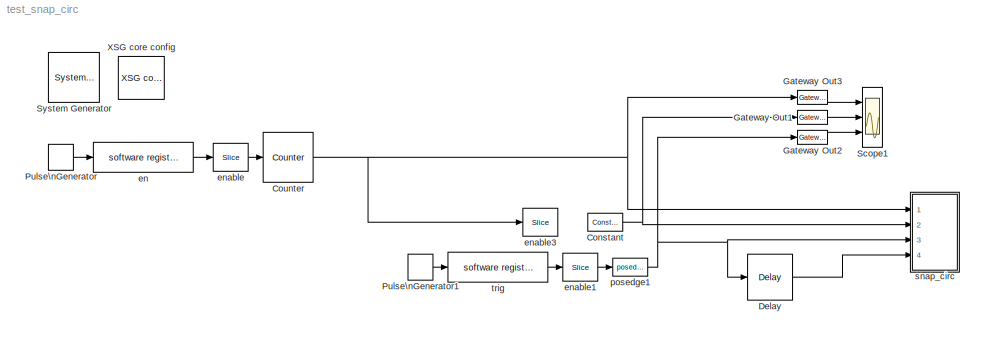
MODEL test_snap_circ
KIND model
BLOCK [Reference]  System Generator  REF=xbsIndex_r4/ System Generator
  AttributesFormatString = System\\nGenerator
  FunctionWithSeparateData = off
  Ports = []
  RTWMemSecDataConstants = Inherit from model
  RTWMemSecDataInternal = Inherit from model
  RTWMemSecDataParameters = Inherit from model
  RTWMemSecFuncExecute = Inherit from model
  RTWMemSecFuncInitTerm = Inherit from model
  ShowPortLabels = FromPortIcon
  SourceBlock = xbsIndex_r4/ System Generator
  SourceType = Xilinx System Generator Block
  SystemSampleTime = -1
  Tag = genX
  UserData = DataTag0
  UserDataPersistent = on
  block_type = sysgen
  block_version = 10.1.3
  clock_wrapper = Clock Enables
  core_generation = According to Block Masks
  dbl_ovrd = According to Block Masks
  dcm_input_clock_period = 100
  deprecated_control = off
  directory = ./cn_b_2x_128w_8a_r307a/sysgen
  eval_field = 0
  has_advanced_control = 0
  incr_netlist = off
  infoedit = System Generator
  package = ff1704
  part = xc2vp70
  run_coregen = off
  sg_icon_stat = 51,50,-1,-1,red,beige,0,07734,right
  sg_mask_display = fprintf('','COMMENT: begin icon graphics');\npatch([0 51 51 0 ],[0 0 50 50 ],[0.93 0.92 0.86]);\npatch([12 4 16 4 12 25 29 33 47 36 25 17 29 17 25 36 47 33 29 25 12 ],[5 13 25 37 45 45 41 45 45 34 45 37 25 13 5 16 5 5 9 5 5 ],[0.6 0.2 0.25]);\nplot([0 51 51 0 0 ],[0 0 50 50 0 ]);\nfprintf('','COMMENT: end icon graphics');\nfprintf('','COMMENT: begin icon text');\nfprintf('','COMMENT: end icon text...<+5ch>
  sggui_pos = -1,-1,-1,-1
  simulink_period = 1
  speed = -7
  synthesis_tool = XST
  sysclk_period = 4.878
  testbench = off
  trim_vbits = Everywhere in SubSystem
  xilinxfamily = Virtex2P
BLOCK [Reference] Constant  REF=xbsIndex_r4/Constant
  Ports = [0, 1]
  SourceBlock = xbsIndex_r4/Constant
  SourceType = Xilinx Constant Block Block
  arith_type = Boolean
  bin_pt = 0
  block_type = constant
  block_version = 10.1.3
  carry = CIN
  const = 1
  dbl_ovrd = off
  dsp48_infoedit = The use of this block for DSP48 instructions is deprecated.  Please use the Opmode block.
  equ = P=C
  explicit_period = on
  has_advanced_control = 0
  inp1 = P
  inp2 = PCIN>>17
  n_bits = 1
  opr = +
  opselect = C
  period = 1
  sg_icon_stat = 35,18,0,1,white,blue,0,1c72b5be,right,
  sg_mask_display = fprintf('','COMMENT: begin icon graphics');\npatch([0 1 1 0 ],[0 0 1 1 ],[0.77 0.82 0.91]);\npatch([0.371429 0.285714 0.4 0.285714 0.371429 0.514286 0.542857 0.571429 0.714286 0.6 0.485714 0.4 0.514286 0.4 0.485714 0.6 0.714286 0.571429 0.542857 0.514286 0.371429 ],[0.111111 0.277778 0.5 0.722222 0.888889 0.888889 0.833333 0.888889 0.888889 0.666667 0.888889 0.722222 0.5 0.277778 0.111111 0.333333...<+269ch>
  sggui_pos = 20,20,414,346
BLOCK [Reference] Counter  REF=xbsIndex_r4/Counter
  Ports = [1, 1]
  SourceBlock = xbsIndex_r4/Counter
  SourceType = Xilinx Counter Block
  arith_type = Unsigned
  bin_pt = 0
  block_type = counter
  block_version = 10.1.3
  cnt_by_val = 1
  cnt_to = Inf
  cnt_type = Free Running
  dbl_ovrd = off
  en = on
  explicit_period = on
  has_advanced_control = 0
  implementation = Fabric
  infoedit = Hardware notes: Free running counters are the least expensive in hardware.  A count limited counter is implemented by combining a counter with a comparator.
  load_pin = off
  n_bits = 32
  operation = Up
  period = 1
  rst = off
  sg_icon_stat = 50,50,1,1,white,blue,0,ed54cb7a,right,
  sg_mask_display = fprintf('','COMMENT: begin icon graphics');\npatch([0 1 1 0 ],[0 0 1 1 ],[0.77 0.82 0.91]);\npatch([0.22 0.06 0.3 0.06 0.22 0.48 0.56 0.64 0.92 0.7 0.48 0.32 0.56 0.32 0.48 0.7 0.92 0.64 0.56 0.48 0.22 ],[0.1 0.26 0.5 0.74 0.9 0.9 0.82 0.9 0.9 0.68 0.9 0.74 0.5 0.26 0.1 0.32 0.1 0.1 0.18 0.1 0.1 ],[0.98 0.96 0.92]);\nplot([0 1 1 0 0 ],[0 0 1 1 0 ]);\nfprintf('','COMMENT: end icon graphics');\nfpri...<+166ch>
  sggui_pos = 20,20,348,619
  start_count = 0
  use_behavioral_HDL = off
  use_rpm = on
  xl_area = [0, 0, 0, 0, 0, 0, 0]
  xl_use_area = off
BLOCK [Reference] Delay  REF=xbsIndex_r4/Delay
  Ports = [1, 1]
  SourceBlock = xbsIndex_r4/Delay
  SourceType = Xilinx Delay Block
  block_type = delay
  block_version = 10.1.3
  dbl_ovrd = off
  en = off
  has_advanced_control = 0
  infoedit = Hardware notes: A delay line is a chain, each link of which is an SRL16 followed by a flip-flop.
  latency = 5200
  reg_retiming = off
  sg_icon_stat = 45,46,1,1,white,blue,0,2eaf0c6a,right,
  sg_mask_display = fprintf('','COMMENT: begin icon graphics');\npatch([0 1 1 0 ],[0 0 1 1 ],[0.77 0.82 0.91]);\npatch([0.222222 0.0666667 0.311111 0.0666667 0.222222 0.488889 0.555556 0.622222 0.911111 0.688889 0.466667 0.311111 0.555556 0.311111 0.466667 0.688889 0.911111 0.622222 0.555556 0.488889 0.222222 ],[0.108696 0.26087 0.5 0.73913 0.891304 0.891304 0.826087 0.891304 0.891304 0.673913 0.891304 0.73913 0.5 0....<+298ch>
  sggui_pos = -1,-1,-1,-1
  xl_area = [0, 0, 0, 0, 0, 0, 0]
  xl_use_area = off
BLOCK [Reference] Gateway Out1  REF=xbsIndex_r4/Gateway Out
  LOCs = {}
  Ports = [1, 1]
  SourceBlock = xbsIndex_r4/Gateway Out
  SourceType = Xilinx Gateway Out Block
  block_type = gatewayout
  block_version = 10.1.3
  has_advanced_control = 0
  hdl_port = off
  infoedit = Gateway out block.  Converts Xilinx fixed point inputs into ouputs of type Simulink integer, double, or fixed point.<P><P>Hardware notes:  In hardware these blocks become top level output ports or are discarded, depending on how they are configured.  <repeated x19 — deduplicated; at blocks: Gateway Out1, Gateway Out2, Gateway Out3, Gateway Out10, Gateway Out11, Gateway Out12, Gateway Out13, Gateway Out14, Gateway Out15, Gateway Out16, Gateway Out4, Gateway Out5, Gateway Out6, Gateway Out7, Gateway Out8, Gateway Out9>
  locs_specified = off
  sg_icon_stat = 30,14,1,1,white,grey,0,632ec840,right,
  sg_mask_display = fprintf('','COMMENT: begin icon graphics');\npatch([0 1 1 0 ],[0 0 1 1 ],[0.88 0.88 0.88]);\npatch([0.366667 0.3 0.4 0.3 0.366667 0.5 0.533333 0.566667 0.7 0.6 0.5 0.433333 0.533333 0.433333 0.5 0.6 0.7 0.566667 0.533333 0.5 0.366667 ],[0.142857 0.285714 0.5 0.714286 0.857143 0.857143 0.785714 0.857143 0.857143 0.642857 0.857143 0.714286 0.5 0.285714 0.142857 0.357143 0.142857 0.142857 0.214286 0....<+317ch>  <repeated x19 — deduplicated; at blocks: Gateway Out1, Gateway Out2, Gateway Out3, Gateway Out10, Gateway Out11, Gateway Out12, Gateway Out13, Gateway Out14, Gateway Out15, Gateway Out16, Gateway Out4, Gateway Out5, Gateway Out6, Gateway Out7, Gateway Out8, Gateway Out9>
  sggui_pos = -1,-1,-1,-1
  timing_constraint = None
  xl_area = [0, 0, 0, 0, 0, 0, 0]
  xl_use_area = off
BLOCK [Reference] Gateway Out2  REF=xbsIndex_r4/Gateway Out
  LOCs = {}
  Ports = [1, 1]
  SourceBlock = xbsIndex_r4/Gateway Out
  SourceType = Xilinx Gateway Out Block
  block_type = gatewayout
  block_version = 10.1.3
  has_advanced_control = 0
  hdl_port = off
  locs_specified = off
  sg_icon_stat = 30,14,1,1,white,grey,0,632ec840,right,
  sggui_pos = -1,-1,-1,-1
  timing_constraint = None
  xl_area = [0, 0, 0, 0, 0, 0, 0]
  xl_use_area = off
BLOCK [Reference] Gateway Out3  REF=xbsIndex_r4/Gateway Out
  LOCs = {}
  Ports = [1, 1]
  SourceBlock = xbsIndex_r4/Gateway Out
  SourceType = Xilinx Gateway Out Block
  block_type = gatewayout
  block_version = 10.1.3
  has_advanced_control = 0
  hdl_port = off
  locs_specified = off
  sg_icon_stat = 30,14,1,1,white,grey,0,632ec840,right,
  sggui_pos = -1,-1,-1,-1
  timing_constraint = None
  xl_area = [0, 0, 0, 0, 0, 0, 0]
  xl_use_area = off
BLOCK [DiscretePulseGenerator] Pulse\nGenerator
  Period = 1
  Ports = [0, 1]
BLOCK [DiscretePulseGenerator] Pulse\nGenerator1
  Period = 2000
  PhaseDelay = 5
  Ports = [0, 1]
  PulseWidth = 2
BLOCK [Scope] Scope1
  DataFormat = StructureWithTime
  Floating = off
  LimitDataPoints = off
  NumInputPorts = 3
  Ports = [3]
  SampleTime = 0
  YMax = 300648000~110~1
  YMin = 272014000~0~0
  ZoomMode = yonly
BLOCK [Reference] XSG core config  REF=xps_library/XSG core config  (lib defined in mdl_00b5cec29cd0, mdl_02ab6ecaa3d1, +5 more)
  BEE2_ctrl_clk_src = sys_clk
  BEE2_usr_clk_src = sys_clk
  CORR_clk_src = sys_clk
  FunctionWithSeparateData = off
  Ports = []
  ROACH_clk_src = sys_clk
  RTWMemSecDataConstants = Inherit from model
  RTWMemSecDataInternal = Inherit from model
  RTWMemSecDataParameters = Inherit from model
  RTWMemSecFuncExecute = Inherit from model
  RTWMemSecFuncInitTerm = Inherit from model
  ShowPortLabels = FromPortIcon
  SourceBlock = xps_library/XSG core config
  SourceType = xsg core config
  SystemSampleTime = -1
  Tag = xps:xsg
  clk_rate = 100
  clk_src = sys_clk
  gpio_clk_bit_index = 0
  gpio_clk_io_group = iBOB:sma
  hw_sys = ROACH:sx95t
  iBOB_clk_src = sys_clk
  ibob_linux = off
  mpc_type = powerpc440_ext
  sample_period = 1
  synthesis_tool = XST
BLOCK [Reference] en  REF=xps_library/software register  (lib defined in mdl_00b5cec29cd0, mdl_02ab6ecaa3d1, +5 more)
  FunctionWithSeparateData = off
  Ports = [1, 1]
  RTWMemSecDataConstants = Inherit from model
  RTWMemSecDataInternal = Inherit from model
  RTWMemSecDataParameters = Inherit from model
  RTWMemSecFuncExecute = Inherit from model
  RTWMemSecFuncInitTerm = Inherit from model
  ShowPortLabels = FromPortIcon
  SourceBlock = xps_library/software register
  SystemSampleTime = -1
  Tag = xps:sw_reg
  arith_type = Unsigned
  bin_pt = 0
  bitwidth = 32
  gw_name = test_snap_circ_en_user_data_out
  io_dir = From Processor
  sample_period = 1
BLOCK [Reference] enable  REF=xbsIndex_r4/Slice
  Ports = [1, 1]
  SourceBlock = xbsIndex_r4/Slice
  SourceType = Xilinx Bit Slice Extractor Block
  base0 = LSB of Input
  base1 = LSB of Input
  bit0 = 0
  bit1 = 0
  block_type = slice
  block_version = 10.1.3
  boolean_output = on
  dbl_ovrd = off
  has_advanced_control = 0
  infoedit = Extracts a given range of bits from each input sample and presents it at the output.  The output type is ordinarily unsigned with binary point at zero, but can be Boolean when the slice is one bit wide.<P><P>Hardware notes: In hardware this block costs nothing.  <repeated x7 — deduplicated; at blocks: enable, enable1, enable3, circ_cap, trig1, valid>
  mode = Lower Bit Location + Width
  nbits = 1
  sg_icon_stat = 35,28,1,1,white,blue,0,1fd851a7,right,
  sg_mask_display = fprintf('','COMMENT: begin icon graphics');\npatch([0 1 1 0 ],[0 0 1 1 ],[0.77 0.82 0.91]);\npatch([0.285714 0.142857 0.342857 0.142857 0.285714 0.485714 0.542857 0.6 0.828571 0.657143 0.485714 0.371429 0.6 0.371429 0.485714 0.657143 0.828571 0.6 0.542857 0.485714 0.285714 ],[0.107143 0.285714 0.535714 0.785714 0.964286 0.964286 0.892857 0.964286 0.964286 0.75 0.964286 0.821429 0.535714 0.25 0.107...<+285ch>  <repeated x7 — deduplicated; at blocks: enable, enable1, enable3, circ_cap, trig1, valid>
  sggui_pos = -1,-1,-1,-1
BLOCK [Reference] enable1  REF=xbsIndex_r4/Slice
  Ports = [1, 1]
  SourceBlock = xbsIndex_r4/Slice
  SourceType = Xilinx Bit Slice Extractor Block
  base0 = LSB of Input
  base1 = LSB of Input
  bit0 = 0
  bit1 = 0
  block_type = slice
  block_version = 10.1.3
  boolean_output = on
  dbl_ovrd = off
  has_advanced_control = 0
  mode = Lower Bit Location + Width
  nbits = 1
  sg_icon_stat = 35,28,1,1,white,blue,0,1fd851a7,right,
  sggui_pos = -1,-1,-1,-1
BLOCK [Reference] enable3  REF=xbsIndex_r4/Slice
  Ports = [1, 1]
  SourceBlock = xbsIndex_r4/Slice
  SourceType = Xilinx Bit Slice Extractor Block
  base0 = LSB of Input
  base1 = LSB of Input
  bit0 = 0
  bit1 = 0
  block_type = slice
  block_version = 10.1.3
  boolean_output = on
  dbl_ovrd = off
  has_advanced_control = 0
  mode = Lower Bit Location + Width
  nbits = 1
  sg_icon_stat = 35,28,1,1,white,blue,0,1fd851a7,right,
  sggui_pos = 20,20,460,380
BLOCK [Reference] posedge1  REF=casper_library/Misc/posedge  (lib defined in mdl_138b2fc3435f, mdl_4ed325b712b3, +2 more)
  FunctionWithSeparateData = off
  Ports = [1, 1]
  RTWMemSecDataConstants = Inherit from model
  RTWMemSecDataInternal = Inherit from model
  RTWMemSecDataParameters = Inherit from model
  RTWMemSecFuncExecute = Inherit from model
  RTWMemSecFuncInitTerm = Inherit from model
  ShowPortLabels = FromPortIcon
  SourceBlock = casper_library/Misc/posedge
  SourceType = posedge
  SystemSampleTime = -1
  Tag = Rising Edge Detector
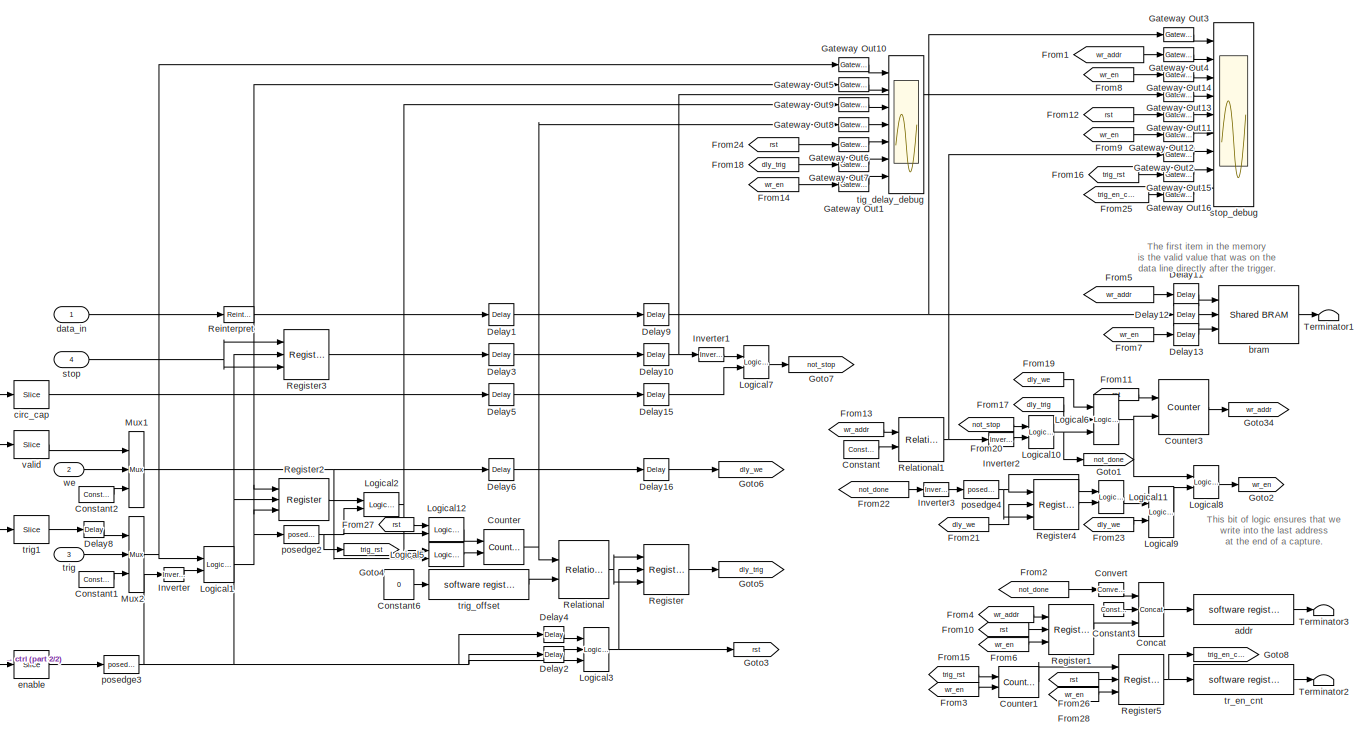
[diagram: snap_circ - part 1/2, most of the canvas]
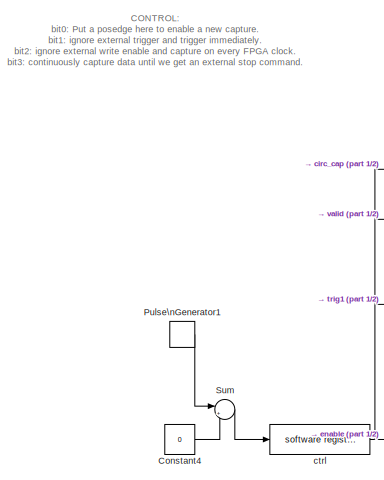
[diagram: snap_circ - part 2/2, middle left region]
BLOCK [SubSystem] snap_circ
  FunctionWithSeparateData = off
  MaskDescription = Backwards compatible with the normal snap block, but with the following upgrades:\n 1) Ability to offset the trigger. Optionally delay the fabric trigger by a user-specified number of valids.\n 2) 'Addr' register's MSb now indicates 'busy capturing'.\n 3) Ability to capture continuously until a stop pulse is received. Data is captured into BRAM continuously, with old data being overwritten until a...<+218ch>
  MaskEnableString = on
  MaskHideContents = off
  MaskIconFrame = on
  MaskIconOpaque = on
  MaskIconRotate = none
  MaskIconUnits = autoscale
  MaskPromptString = Number of Samples (2^?)
  MaskStyleString = edit
  MaskToolTipString = on
  MaskTunableValueString = on
  MaskType = snap_circ
  MaskValueString = 10
  MaskVariables = nsamples=@1;
  MaskVisibilityString = on
  MinAlgLoopOccurrences = off
  Opaque = off
  Ports = [4]
  PropExecContextOutsideSubsystem = off
  RTWSystemCode = Auto
  RequestExecContextInheritance = off
BLOCK [Reference] snap_circ/Concat  REF=xbsIndex_r4/Concat
  Ports = [3, 1]
  SourceBlock = xbsIndex_r4/Concat
  SourceType = Xilinx Bus Concatenator Block
  block_type = concat
  block_version = 10.1.3
  dbl_ovrd = off
  has_advanced_control = 0
  infoedit = Concatenates two or more inputs.  Output will be cast to an unsigned value with the binary point at zero.
  num_inputs = 3
  sg_icon_stat = 25,54,3,1,white,blue,0,cc9eafd1,right,
  sg_mask_display = fprintf('','COMMENT: begin icon graphics');\npatch([0 1 1 0 ],[0 0 1 1 ],[0.77 0.82 0.91]);\npatch([0.24 0.08 0.32 0.08 0.24 0.52 0.6 0.68 0.96 0.72 0.52 0.36 0.56 0.36 0.52 0.72 0.96 0.68 0.6 0.52 0.24 ],[0.314815 0.388889 0.5 0.611111 0.685185 0.685185 0.648148 0.685185 0.685185 0.574074 0.666667 0.592593 0.5 0.407407 0.333333 0.425926 0.314815 0.314815 0.351852 0.314815 0.314815 ],[0.98 0.96 0....<+252ch>
  sggui_pos = 20,20,336,162
BLOCK [Reference] snap_circ/Constant  REF=xbsIndex_r4/Constant
  Ports = [0, 1]
  SourceBlock = xbsIndex_r4/Constant
  SourceType = Xilinx Constant Block Block
  arith_type = Unsigned
  bin_pt = 0
  block_type = constant
  block_version = 10.1.3
  carry = CIN
  const = (2^nsamples)-1
  dbl_ovrd = off
  dsp48_infoedit = The use of this block for DSP48 instructions is deprecated.  Please use the Opmode block.
  equ = P=C
  explicit_period = on
  has_advanced_control = 0
  inp1 = P
  inp2 = PCIN>>17
  n_bits = nsamples
  opr = +
  opselect = C
  period = 1
  sg_icon_stat = 35,18,0,1,white,blue,0,3ed70023,right,
  sg_mask_display = fprintf('','COMMENT: begin icon graphics');\npatch([0 1 1 0 ],[0 0 1 1 ],[0.77 0.82 0.91]);\npatch([0.371429 0.285714 0.4 0.285714 0.371429 0.514286 0.542857 0.571429 0.714286 0.6 0.485714 0.4 0.514286 0.4 0.485714 0.6 0.714286 0.571429 0.542857 0.514286 0.371429 ],[0.111111 0.277778 0.5 0.722222 0.888889 0.888889 0.833333 0.888889 0.888889 0.666667 0.888889 0.722222 0.5 0.277778 0.111111 0.333333...<+272ch>
  sggui_pos = 20,20,414,346
BLOCK [Reference] snap_circ/Constant1  REF=xbsIndex_r4/Constant
  Ports = [0, 1]
  SourceBlock = xbsIndex_r4/Constant
  SourceType = Xilinx Constant Block Block
  arith_type = Boolean
  bin_pt = 0
  block_type = constant
  block_version = 10.1.3
  carry = CIN
  const = 1
  dbl_ovrd = off
  dsp48_infoedit = The use of this block for DSP48 instructions is deprecated.  Please use the Opmode block.
  equ = P=C
  explicit_period = on
  has_advanced_control = 0
  inp1 = P
  inp2 = PCIN>>17
  n_bits = 1
  opr = +
  opselect = C
  period = 1
  sg_icon_stat = 35,16,0,1,white,blue,0,1c72b5be,right,
  sg_mask_display = fprintf('','COMMENT: begin icon graphics');\npatch([0 1 1 0 ],[0 0 1 1 ],[0.77 0.82 0.91]);\npatch([0.4 0.314286 0.428571 0.314286 0.4 0.514286 0.542857 0.571429 0.714286 0.6 0.514286 0.457143 0.571429 0.457143 0.514286 0.6 0.714286 0.571429 0.542857 0.514286 0.4 ],[0.125 0.3125 0.5625 0.8125 1 1 0.9375 1 1 0.75 0.9375 0.8125 0.5625 0.3125 0.1875 0.375 0.125 0.125 0.1875 0.125 0.125 ],[0.98 0.96 0...<+209ch>
  sggui_pos = -1,-1,-1,-1
BLOCK [Reference] snap_circ/Constant2  REF=xbsIndex_r4/Constant
  Ports = [0, 1]
  SourceBlock = xbsIndex_r4/Constant
  SourceType = Xilinx Constant Block Block
  arith_type = Boolean
  bin_pt = 0
  block_type = constant
  block_version = 10.1.3
  carry = CIN
  const = 1
  dbl_ovrd = off
  dsp48_infoedit = The use of this block for DSP48 instructions is deprecated.  Please use the Opmode block.
  equ = P=C
  explicit_period = on
  has_advanced_control = 0
  inp1 = P
  inp2 = PCIN>>17
  n_bits = 1
  opr = +
  opselect = C
  period = 1
  sg_icon_stat = 35,16,0,1,white,blue,0,1c72b5be,right,
  sg_mask_display = fprintf('','COMMENT: begin icon graphics');\npatch([0 1 1 0 ],[0 0 1 1 ],[0.77 0.82 0.91]);\npatch([0.4 0.314286 0.428571 0.314286 0.4 0.514286 0.542857 0.571429 0.714286 0.6 0.514286 0.457143 0.571429 0.457143 0.514286 0.6 0.714286 0.571429 0.542857 0.514286 0.4 ],[0.125 0.3125 0.5625 0.8125 1 1 0.9375 1 1 0.75 0.9375 0.8125 0.5625 0.3125 0.1875 0.375 0.125 0.125 0.1875 0.125 0.125 ],[0.98 0.96 0...<+209ch>
  sggui_pos = -1,-1,-1,-1
BLOCK [Reference] snap_circ/Constant3  REF=xbsIndex_r4/Constant
  Ports = [0, 1]
  SourceBlock = xbsIndex_r4/Constant
  SourceType = Xilinx Constant Block Block
  arith_type = Unsigned
  bin_pt = 0
  block_type = constant
  block_version = 10.1.3
  carry = CIN
  const = 0
  dbl_ovrd = off
  dsp48_infoedit = The use of this block for DSP48 instructions is deprecated.  Please use the Opmode block.
  equ = P=C
  explicit_period = on
  has_advanced_control = 0
  inp1 = P
  inp2 = PCIN>>17
  n_bits = 32-nsamples-1
  opr = +
  opselect = C
  period = 1
  sg_icon_stat = 20,14,0,1,white,blue,0,bf4ddd8b,right,
  sg_mask_display = fprintf('','COMMENT: begin icon graphics');\npatch([0 1 1 0 ],[0 0 1 1 ],[0.77 0.82 0.91]);\npatch([0.3 0.2 0.35 0.2 0.3 0.5 0.55 0.6 0.8 0.65 0.5 0.4 0.55 0.4 0.5 0.65 0.8 0.6 0.55 0.5 0.3 ],[0.142857 0.285714 0.5 0.714286 0.857143 0.857143 0.785714 0.857143 0.857143 0.642857 0.857143 0.714286 0.5 0.285714 0.142857 0.357143 0.142857 0.142857 0.214286 0.142857 0.142857 ],[0.98 0.96 0.92]);\nplot([...<+195ch>
  sggui_pos = 20,20,414,346
BLOCK [Constant] snap_circ/Constant4
  OutDataType = sfix(16)
  OutScaling = 2^0
  Value = 0
BLOCK [Constant] snap_circ/Constant6
  OutDataType = sfix(16)
  OutScaling = 2^0
  Value = 0
BLOCK [Reference] snap_circ/Convert  REF=xbsIndex_r4/Convert
  Ports = [1, 1]
  SourceBlock = xbsIndex_r4/Convert
  SourceType = Xilinx Type Converter Block
  arith_type = Unsigned
  bin_pt = 0
  block_type = convert
  block_version = 10.1.3
  dbl_ovrd = off
  has_advanced_control = 0
  infoedit = Hardware notes: rounding and saturating require hardware resources; truncating and wrapping do not.
  latency = 0
  n_bits = 1
  overflow = Wrap
  pipeline = off
  quantization = Truncate
  sg_icon_stat = 25,14,1,1,white,blue,0,edca21da,right,
  sg_mask_display = fprintf('','COMMENT: begin icon graphics');\npatch([0 1 1 0 ],[0 0 1 1 ],[0.77 0.82 0.91]);\npatch([0.32 0.24 0.36 0.24 0.32 0.48 0.52 0.56 0.72 0.6 0.48 0.4 0.52 0.4 0.48 0.6 0.72 0.56 0.52 0.48 0.32 ],[0.142857 0.285714 0.5 0.714286 0.857143 0.857143 0.785714 0.857143 0.857143 0.642857 0.857143 0.714286 0.5 0.285714 0.142857 0.357143 0.142857 0.142857 0.214286 0.142857 0.142857 ],[0.98 0.96 0.92...<+209ch>
  sggui_pos = 20,20,470,336
  xl_area = [0,0,0,0,0,0,0]
  xl_use_area = off
BLOCK [Reference] snap_circ/Counter  REF=xbsIndex_r4/Counter
  Ports = [2, 1]
  SourceBlock = xbsIndex_r4/Counter
  SourceType = Xilinx Counter Block
  arith_type = Unsigned
  bin_pt = 0
  block_type = counter
  block_version = 10.1.3
  cnt_by_val = 1
  cnt_to = Inf
  cnt_type = Free Running
  dbl_ovrd = off
  en = on
  explicit_period = on
  has_advanced_control = 0
  implementation = Fabric
  infoedit = Hardware notes: Free running counters are the least expensive in hardware.  A count limited counter is implemented by combining a counter with a comparator.
  load_pin = off
  n_bits = 32
  operation = Up
  period = 1
  rst = on
  sg_icon_stat = 40,35,2,1,white,blue,0,d605779c,right,
  sg_mask_display = fprintf('','COMMENT: begin icon graphics');\npatch([0 1 1 0 ],[0 0 1 1 ],[0.77 0.82 0.91]);\npatch([0.275 0.125 0.325 0.125 0.275 0.5 0.575 0.65 0.9 0.7 0.525 0.4 0.6 0.4 0.525 0.7 0.9 0.65 0.575 0.5 0.275 ],[0.114286 0.285714 0.514286 0.742857 0.914286 0.914286 0.828571 0.914286 0.914286 0.685714 0.885714 0.742857 0.514286 0.285714 0.142857 0.342857 0.114286 0.114286 0.2 0.114286 0.114286 ],[0.98...<+307ch>
  sggui_pos = 20,20,348,619
  start_count = 0
  use_behavioral_HDL = off
  use_rpm = on
  xl_area = [0, 0, 0, 0, 0, 0, 0]
  xl_use_area = off
BLOCK [Reference] snap_circ/Counter1  REF=xbsIndex_r4/Counter
  Ports = [2, 1]
  SourceBlock = xbsIndex_r4/Counter
  SourceType = Xilinx Counter Block
  arith_type = Unsigned
  bin_pt = 0
  block_type = counter
  block_version = 10.1.3
  cnt_by_val = 1
  cnt_to = Inf
  cnt_type = Free Running
  dbl_ovrd = off
  en = on
  explicit_period = on
  has_advanced_control = 0
  implementation = Fabric
  infoedit = Hardware notes: Free running counters are the least expensive in hardware.  A count limited counter is implemented by combining a counter with a comparator.
  load_pin = off
  n_bits = 32
  operation = Up
  period = 1
  rst = on
  sg_icon_stat = 40,31,2,1,white,blue,0,d605779c,right,
  sg_mask_display = fprintf('','COMMENT: begin icon graphics');\npatch([0 1 1 0 ],[0 0 1 1 ],[0.77 0.82 0.91]);\npatch([0.3 0.175 0.35 0.175 0.3 0.5 0.55 0.6 0.825 0.65 0.475 0.35 0.525 0.35 0.475 0.65 0.825 0.6 0.55 0.5 0.3 ],[0.0967742 0.258065 0.483871 0.709677 0.870968 0.870968 0.806452 0.870968 0.870968 0.645161 0.870968 0.709677 0.483871 0.258065 0.0967742 0.322581 0.0967742 0.0967742 0.16129 0.0967742 0.096774...<+316ch>
  sggui_pos = 20,20,348,619
  start_count = 0
  use_behavioral_HDL = off
  use_rpm = on
  xl_area = [0, 0, 0, 0, 0, 0, 0]
  xl_use_area = off
BLOCK [Reference] snap_circ/Counter3  REF=xbsIndex_r4/Counter
  Ports = [2, 1]
  SourceBlock = xbsIndex_r4/Counter
  SourceType = Xilinx Counter Block
  arith_type = Unsigned
  bin_pt = 0
  block_type = counter
  block_version = 10.1.3
  cnt_by_val = 1
  cnt_to = 1
  cnt_type = Free Running
  dbl_ovrd = off
  en = on
  explicit_period = on
  has_advanced_control = 0
  implementation = Fabric
  infoedit = Hardware notes: Free running counters are the least expensive in hardware.  A count limited counter is implemented by combining a counter with a comparator.
  load_pin = off
  n_bits = nsamples
  operation = Up
  period = 1
  rst = on
  sg_icon_stat = 50,55,2,1,white,blue,0,d605779c,right,
  sg_mask_display = fprintf('','COMMENT: begin icon graphics');\npatch([0 1 1 0 ],[0 0 1 1 ],[0.77 0.82 0.91]);\npatch([0.22 0.06 0.3 0.06 0.22 0.48 0.56 0.64 0.92 0.7 0.48 0.32 0.56 0.32 0.48 0.7 0.92 0.64 0.56 0.48 0.22 ],[0.145455 0.290909 0.509091 0.727273 0.872727 0.872727 0.8 0.872727 0.872727 0.672727 0.872727 0.727273 0.509091 0.290909 0.145455 0.345455 0.145455 0.145455 0.218182 0.145455 0.145455 ],[0.98 0.9...<+303ch>
  sggui_pos = 20,20,348,619
  start_count = 0
  use_behavioral_HDL = off
  use_rpm = on
  xl_area = [0, 0, 0, 0, 0, 0, 0]
  xl_use_area = off
BLOCK [Reference] snap_circ/Delay1  REF=xbsIndex_r4/Delay
  Ports = [1, 1]
  SourceBlock = xbsIndex_r4/Delay
  SourceType = Xilinx Delay Block
  block_type = delay
  block_version = 10.1.3
  dbl_ovrd = off
  en = off
  has_advanced_control = 0
  infoedit = Hardware notes: A delay line is a chain, each link of which is an SRL16 followed by a flip-flop.
  latency = 1
  reg_retiming = on
  sg_icon_stat = 25,22,1,1,white,blue,0,07b98262,right,
  sg_mask_display = fprintf('','COMMENT: begin icon graphics');\npatch([0 1 1 0 ],[0 0 1 1 ],[0.77 0.82 0.91]);\npatch([0.28 0.12 0.32 0.12 0.28 0.52 0.6 0.68 0.92 0.72 0.52 0.4 0.64 0.4 0.52 0.72 0.92 0.68 0.6 0.52 0.28 ],[0.0909091 0.272727 0.5 0.727273 0.909091 0.909091 0.818182 0.909091 0.909091 0.681818 0.909091 0.772727 0.5 0.227273 0.0909091 0.318182 0.0909091 0.0909091 0.181818 0.0909091 0.0909091 ],[0.98 0.9...<+215ch>  <repeated x11 — deduplicated; at blocks: Delay1, Delay10, Delay11, Delay12, Delay13, Delay15, Delay16, Delay3, Delay5, Delay6, Delay9>
  sggui_pos = -1,-1,-1,-1
  xl_area = [0, 0, 0, 0, 0, 0, 0]
  xl_use_area = off
BLOCK [Reference] snap_circ/Delay10  REF=xbsIndex_r4/Delay
  Ports = [1, 1]
  SourceBlock = xbsIndex_r4/Delay
  SourceType = Xilinx Delay Block
  block_type = delay
  block_version = 10.1.3
  dbl_ovrd = off
  en = off
  has_advanced_control = 0
  infoedit = Hardware notes: A delay line is a chain, each link of which is an SRL16 followed by a flip-flop.
  latency = 1
  reg_retiming = on
  sg_icon_stat = 25,22,1,1,white,blue,0,07b98262,right,
  sggui_pos = -1,-1,-1,-1
  xl_area = [0, 0, 0, 0, 0, 0, 0]
  xl_use_area = off
BLOCK [Reference] snap_circ/Delay11  REF=xbsIndex_r4/Delay
  Ports = [1, 1]
  SourceBlock = xbsIndex_r4/Delay
  SourceType = Xilinx Delay Block
  block_type = delay
  block_version = 10.1.3
  dbl_ovrd = off
  en = off
  has_advanced_control = 0
  infoedit = Hardware notes: A delay line is a chain, each link of which is an SRL16 followed by a flip-flop.
  latency = 1
  reg_retiming = on
  sg_icon_stat = 25,22,1,1,white,blue,0,07b98262,right,
  sggui_pos = -1,-1,-1,-1
  xl_area = [0, 0, 0, 0, 0, 0, 0]
  xl_use_area = off
BLOCK [Reference] snap_circ/Delay12  REF=xbsIndex_r4/Delay
  Ports = [1, 1]
  SourceBlock = xbsIndex_r4/Delay
  SourceType = Xilinx Delay Block
  block_type = delay
  block_version = 10.1.3
  dbl_ovrd = off
  en = off
  has_advanced_control = 0
  infoedit = Hardware notes: A delay line is a chain, each link of which is an SRL16 followed by a flip-flop.
  latency = 1
  reg_retiming = on
  sg_icon_stat = 25,22,1,1,white,blue,0,07b98262,right,
  sggui_pos = -1,-1,-1,-1
  xl_area = [0, 0, 0, 0, 0, 0, 0]
  xl_use_area = off
BLOCK [Reference] snap_circ/Delay13  REF=xbsIndex_r4/Delay
  Ports = [1, 1]
  SourceBlock = xbsIndex_r4/Delay
  SourceType = Xilinx Delay Block
  block_type = delay
  block_version = 10.1.3
  dbl_ovrd = off
  en = off
  has_advanced_control = 0
  infoedit = Hardware notes: A delay line is a chain, each link of which is an SRL16 followed by a flip-flop.
  latency = 1
  reg_retiming = on
  sg_icon_stat = 25,22,1,1,white,blue,0,07b98262,right,
  sggui_pos = -1,-1,-1,-1
  xl_area = [0, 0, 0, 0, 0, 0, 0]
  xl_use_area = off
BLOCK [Reference] snap_circ/Delay15  REF=xbsIndex_r4/Delay
  Ports = [1, 1]
  SourceBlock = xbsIndex_r4/Delay
  SourceType = Xilinx Delay Block
  block_type = delay
  block_version = 10.1.3
  dbl_ovrd = off
  en = off
  has_advanced_control = 0
  infoedit = Hardware notes: A delay line is a chain, each link of which is an SRL16 followed by a flip-flop.
  latency = 1
  reg_retiming = on
  sg_icon_stat = 25,22,1,1,white,blue,0,07b98262,right,
  sggui_pos = -1,-1,-1,-1
  xl_area = [0, 0, 0, 0, 0, 0, 0]
  xl_use_area = off
BLOCK [Reference] snap_circ/Delay16  REF=xbsIndex_r4/Delay
  Ports = [1, 1]
  SourceBlock = xbsIndex_r4/Delay
  SourceType = Xilinx Delay Block
  block_type = delay
  block_version = 10.1.3
  dbl_ovrd = off
  en = off
  has_advanced_control = 0
  infoedit = Hardware notes: A delay line is a chain, each link of which is an SRL16 followed by a flip-flop.
  latency = 1
  reg_retiming = on
  sg_icon_stat = 25,22,1,1,white,blue,0,07b98262,right,
  sggui_pos = 20,20,348,255
  xl_area = [0, 0, 0, 0, 0, 0, 0]
  xl_use_area = off
BLOCK [Reference] snap_circ/Delay2  REF=xbsIndex_r4/Delay
  Ports = [1, 1]
  SourceBlock = xbsIndex_r4/Delay
  SourceType = Xilinx Delay Block
  block_type = delay
  block_version = 10.1.3
  dbl_ovrd = off
  en = off
  has_advanced_control = 0
  infoedit = Hardware notes: A delay line is a chain, each link of which is an SRL16 followed by a flip-flop.
  latency = 2
  reg_retiming = on
  sg_icon_stat = 20,16,1,1,white,blue,0,85ce9542,right,
  sg_mask_display = fprintf('','COMMENT: begin icon graphics');\npatch([0 1 1 0 ],[0 0 1 1 ],[0.77 0.82 0.91]);\npatch([0.3 0.15 0.35 0.15 0.3 0.5 0.55 0.6 0.85 0.65 0.5 0.4 0.6 0.4 0.5 0.65 0.85 0.6 0.55 0.5 0.3 ],[0.125 0.3125 0.5625 0.8125 1 1 0.9375 1 1 0.75 0.9375 0.8125 0.5625 0.3125 0.1875 0.375 0.125 0.125 0.1875 0.125 0.125 ],[0.98 0.96 0.92]);\nplot([0 1 1 0 0 ],[0 0 1 1 0 ]);\nfprintf('','COMMENT: end icon...<+141ch>  <repeated x3 — deduplicated; at blocks: Delay2, Delay4, Delay8>
  sggui_pos = -1,-1,-1,-1
  xl_area = [0, 0, 0, 0, 0, 0, 0]
  xl_use_area = off
BLOCK [Reference] snap_circ/Delay3  REF=xbsIndex_r4/Delay
  Ports = [1, 1]
  SourceBlock = xbsIndex_r4/Delay
  SourceType = Xilinx Delay Block
  block_type = delay
  block_version = 10.1.3
  dbl_ovrd = off
  en = off
  has_advanced_control = 0
  infoedit = Hardware notes: A delay line is a chain, each link of which is an SRL16 followed by a flip-flop.
  latency = 1
  reg_retiming = on
  sg_icon_stat = 25,22,1,1,white,blue,0,07b98262,right,
  sggui_pos = -1,-1,-1,-1
  xl_area = [0, 0, 0, 0, 0, 0, 0]
  xl_use_area = off
BLOCK [Reference] snap_circ/Delay4  REF=xbsIndex_r4/Delay
  Ports = [1, 1]
  SourceBlock = xbsIndex_r4/Delay
  SourceType = Xilinx Delay Block
  block_type = delay
  block_version = 10.1.3
  dbl_ovrd = off
  en = off
  has_advanced_control = 0
  infoedit = Hardware notes: A delay line is a chain, each link of which is an SRL16 followed by a flip-flop.
  latency = 1
  reg_retiming = on
  sg_icon_stat = 20,16,1,1,white,blue,0,07b98262,right,
  sggui_pos = -1,-1,-1,-1
  xl_area = [0, 0, 0, 0, 0, 0, 0]
  xl_use_area = off
BLOCK [Reference] snap_circ/Delay5  REF=xbsIndex_r4/Delay
  Ports = [1, 1]
  SourceBlock = xbsIndex_r4/Delay
  SourceType = Xilinx Delay Block
  block_type = delay
  block_version = 10.1.3
  dbl_ovrd = off
  en = off
  has_advanced_control = 0
  infoedit = Hardware notes: A delay line is a chain, each link of which is an SRL16 followed by a flip-flop.
  latency = 1
  reg_retiming = on
  sg_icon_stat = 25,22,1,1,white,blue,0,07b98262,right,
  sggui_pos = -1,-1,-1,-1
  xl_area = [0, 0, 0, 0, 0, 0, 0]
  xl_use_area = off
BLOCK [Reference] snap_circ/Delay6  REF=xbsIndex_r4/Delay
  Ports = [1, 1]
  SourceBlock = xbsIndex_r4/Delay
  SourceType = Xilinx Delay Block
  block_type = delay
  block_version = 10.1.3
  dbl_ovrd = off
  en = off
  has_advanced_control = 0
  infoedit = Hardware notes: A delay line is a chain, each link of which is an SRL16 followed by a flip-flop.
  latency = 1
  reg_retiming = on
  sg_icon_stat = 25,22,1,1,white,blue,0,07b98262,right,
  sggui_pos = -1,-1,-1,-1
  xl_area = [0, 0, 0, 0, 0, 0, 0]
  xl_use_area = off
BLOCK [Reference] snap_circ/Delay8  REF=xbsIndex_r4/Delay
  Ports = [1, 1]
  SourceBlock = xbsIndex_r4/Delay
  SourceType = Xilinx Delay Block
  block_type = delay
  block_version = 10.1.3
  dbl_ovrd = off
  en = off
  has_advanced_control = 0
  infoedit = Hardware notes: A delay line is a chain, each link of which is an SRL16 followed by a flip-flop.
  latency = 3
  reg_retiming = on
  sg_icon_stat = 20,16,1,1,white,blue,0,83e6bb61,right,
  sggui_pos = 20,20,348,255
  xl_area = [0, 0, 0, 0, 0, 0, 0]
  xl_use_area = off
BLOCK [Reference] snap_circ/Delay9  REF=xbsIndex_r4/Delay
  Ports = [1, 1]
  SourceBlock = xbsIndex_r4/Delay
  SourceType = Xilinx Delay Block
  block_type = delay
  block_version = 10.1.3
  dbl_ovrd = off
  en = off
  has_advanced_control = 0
  infoedit = Hardware notes: A delay line is a chain, each link of which is an SRL16 followed by a flip-flop.
  latency = 1
  reg_retiming = on
  sg_icon_stat = 25,22,1,1,white,blue,0,07b98262,right,
  sggui_pos = -1,-1,-1,-1
  xl_area = [0, 0, 0, 0, 0, 0, 0]
  xl_use_area = off
BLOCK [From] snap_circ/From1
  CloseFcn = tagdialog Close
  GotoTag = wr_addr
BLOCK [From] snap_circ/From10
  CloseFcn = tagdialog Close
  GotoTag = rst
BLOCK [From] snap_circ/From11
  CloseFcn = tagdialog Close
  GotoTag = rst
BLOCK [From] snap_circ/From12
  CloseFcn = tagdialog Close
  GotoTag = rst
BLOCK [From] snap_circ/From13
  CloseFcn = tagdialog Close
  GotoTag = wr_addr
BLOCK [From] snap_circ/From14
  CloseFcn = tagdialog Close
  GotoTag = wr_en
BLOCK [From] snap_circ/From15
  CloseFcn = tagdialog Close
  GotoTag = trig_rst
BLOCK [From] snap_circ/From16
  CloseFcn = tagdialog Close
  GotoTag = trig_rst
BLOCK [From] snap_circ/From17
  CloseFcn = tagdialog Close
  GotoTag = dly_trig
BLOCK [From] snap_circ/From18
  CloseFcn = tagdialog Close
  GotoTag = dly_trig
BLOCK [From] snap_circ/From19
  CloseFcn = tagdialog Close
  GotoTag = dly_we
BLOCK [From] snap_circ/From2
  CloseFcn = tagdialog Close
  GotoTag = not_done
BLOCK [From] snap_circ/From20
  CloseFcn = tagdialog Close
  GotoTag = not_stop
BLOCK [From] snap_circ/From21
  CloseFcn = tagdialog Close
  GotoTag = dly_we
BLOCK [From] snap_circ/From22
  CloseFcn = tagdialog Close
  GotoTag = not_done
BLOCK [From] snap_circ/From23
  CloseFcn = tagdialog Close
  GotoTag = dly_we
BLOCK [From] snap_circ/From24
  CloseFcn = tagdialog Close
  GotoTag = rst
BLOCK [From] snap_circ/From25
  CloseFcn = tagdialog Close
  GotoTag = trig_en_cnt
BLOCK [From] snap_circ/From26
  CloseFcn = tagdialog Close
  GotoTag = rst
BLOCK [From] snap_circ/From27
  CloseFcn = tagdialog Close
  GotoTag = rst
BLOCK [From] snap_circ/From28
  CloseFcn = tagdialog Close
  GotoTag = wr_en
BLOCK [From] snap_circ/From3
  CloseFcn = tagdialog Close
  GotoTag = wr_en
BLOCK [From] snap_circ/From4
  CloseFcn = tagdialog Close
  GotoTag = wr_addr
BLOCK [From] snap_circ/From5
  CloseFcn = tagdialog Close
  GotoTag = wr_addr
BLOCK [From] snap_circ/From6
  CloseFcn = tagdialog Close
  GotoTag = wr_en
BLOCK [From] snap_circ/From7
  CloseFcn = tagdialog Close
  GotoTag = wr_en
BLOCK [From] snap_circ/From8
  CloseFcn = tagdialog Close
  GotoTag = wr_en
BLOCK [From] snap_circ/From9
  CloseFcn = tagdialog Close
  GotoTag = wr_en
BLOCK [Reference] snap_circ/Gateway Out1  REF=xbsIndex_r4/Gateway Out
  LOCs = {}
  Ports = [1, 1]
  SourceBlock = xbsIndex_r4/Gateway Out
  SourceType = Xilinx Gateway Out Block
  block_type = gatewayout
  block_version = 10.1.3
  has_advanced_control = 0
  hdl_port = off
  locs_specified = off
  sg_icon_stat = 30,14,1,1,white,grey,0,632ec840,right,
  sggui_pos = -1,-1,-1,-1
  timing_constraint = None
  xl_area = [0, 0, 0, 0, 0, 0, 0]
  xl_use_area = off
BLOCK [Reference] snap_circ/Gateway Out10  REF=xbsIndex_r4/Gateway Out
  LOCs = {}
  Ports = [1, 1]
  SourceBlock = xbsIndex_r4/Gateway Out
  SourceType = Xilinx Gateway Out Block
  block_type = gatewayout
  block_version = 10.1.3
  has_advanced_control = 0
  hdl_port = off
  locs_specified = off
  sg_icon_stat = 30,14,1,1,white,grey,0,632ec840,right,
  sggui_pos = -1,-1,-1,-1
  timing_constraint = None
  xl_area = [0, 0, 0, 0, 0, 0, 0]
  xl_use_area = off
BLOCK [Reference] snap_circ/Gateway Out11  REF=xbsIndex_r4/Gateway Out
  LOCs = {}
  Ports = [1, 1]
  SourceBlock = xbsIndex_r4/Gateway Out
  SourceType = Xilinx Gateway Out Block
  block_type = gatewayout
  block_version = 10.1.3
  has_advanced_control = 0
  hdl_port = off
  locs_specified = off
  sg_icon_stat = 30,14,1,1,white,grey,0,632ec840,right,
  sggui_pos = -1,-1,-1,-1
  timing_constraint = None
  xl_area = [0, 0, 0, 0, 0, 0, 0]
  xl_use_area = off
BLOCK [Reference] snap_circ/Gateway Out12  REF=xbsIndex_r4/Gateway Out
  LOCs = {}
  Ports = [1, 1]
  SourceBlock = xbsIndex_r4/Gateway Out
  SourceType = Xilinx Gateway Out Block
  block_type = gatewayout
  block_version = 10.1.3
  has_advanced_control = 0
  hdl_port = off
  locs_specified = off
  sg_icon_stat = 30,14,1,1,white,grey,0,632ec840,right,
  sggui_pos = -1,-1,-1,-1
  timing_constraint = None
  xl_area = [0, 0, 0, 0, 0, 0, 0]
  xl_use_area = off
BLOCK [Reference] snap_circ/Gateway Out13  REF=xbsIndex_r4/Gateway Out
  LOCs = {}
  Ports = [1, 1]
  SourceBlock = xbsIndex_r4/Gateway Out
  SourceType = Xilinx Gateway Out Block
  block_type = gatewayout
  block_version = 10.1.3
  has_advanced_control = 0
  hdl_port = off
  locs_specified = off
  sg_icon_stat = 30,14,1,1,white,grey,0,632ec840,right,
  sggui_pos = -1,-1,-1,-1
  timing_constraint = None
  xl_area = [0, 0, 0, 0, 0, 0, 0]
  xl_use_area = off
BLOCK [Reference] snap_circ/Gateway Out14  REF=xbsIndex_r4/Gateway Out
  LOCs = {}
  Ports = [1, 1]
  SourceBlock = xbsIndex_r4/Gateway Out
  SourceType = Xilinx Gateway Out Block
  block_type = gatewayout
  block_version = 10.1.3
  has_advanced_control = 0
  hdl_port = off
  locs_specified = off
  sg_icon_stat = 30,14,1,1,white,grey,0,632ec840,right,
  sggui_pos = -1,-1,-1,-1
  timing_constraint = None
  xl_area = [0, 0, 0, 0, 0, 0, 0]
  xl_use_area = off
BLOCK [Reference] snap_circ/Gateway Out15  REF=xbsIndex_r4/Gateway Out
  LOCs = {}
  Ports = [1, 1]
  SourceBlock = xbsIndex_r4/Gateway Out
  SourceType = Xilinx Gateway Out Block
  block_type = gatewayout
  block_version = 10.1.3
  has_advanced_control = 0
  hdl_port = off
  locs_specified = off
  sg_icon_stat = 30,14,1,1,white,grey,0,632ec840,right,
  sggui_pos = -1,-1,-1,-1
  timing_constraint = None
  xl_area = [0, 0, 0, 0, 0, 0, 0]
  xl_use_area = off
BLOCK [Reference] snap_circ/Gateway Out16  REF=xbsIndex_r4/Gateway Out
  LOCs = {}
  Ports = [1, 1]
  SourceBlock = xbsIndex_r4/Gateway Out
  SourceType = Xilinx Gateway Out Block
  block_type = gatewayout
  block_version = 10.1.3
  has_advanced_control = 0
  hdl_port = off
  locs_specified = off
  sg_icon_stat = 30,14,1,1,white,grey,0,632ec840,right,
  sggui_pos = -1,-1,-1,-1
  timing_constraint = None
  xl_area = [0, 0, 0, 0, 0, 0, 0]
  xl_use_area = off
BLOCK [Reference] snap_circ/Gateway Out2  REF=xbsIndex_r4/Gateway Out
  LOCs = {}
  Ports = [1, 1]
  SourceBlock = xbsIndex_r4/Gateway Out
  SourceType = Xilinx Gateway Out Block
  block_type = gatewayout
  block_version = 10.1.3
  has_advanced_control = 0
  hdl_port = off
  locs_specified = off
  sg_icon_stat = 30,14,1,1,white,grey,0,632ec840,right,
  sggui_pos = -1,-1,-1,-1
  timing_constraint = None
  xl_area = [0, 0, 0, 0, 0, 0, 0]
  xl_use_area = off
BLOCK [Reference] snap_circ/Gateway Out3  REF=xbsIndex_r4/Gateway Out
  LOCs = {}
  Ports = [1, 1]
  SourceBlock = xbsIndex_r4/Gateway Out
  SourceType = Xilinx Gateway Out Block
  block_type = gatewayout
  block_version = 10.1.3
  has_advanced_control = 0
  hdl_port = off
  locs_specified = off
  sg_icon_stat = 30,14,1,1,white,grey,0,632ec840,right,
  sggui_pos = -1,-1,-1,-1
  timing_constraint = None
  xl_area = [0, 0, 0, 0, 0, 0, 0]
  xl_use_area = off
BLOCK [Reference] snap_circ/Gateway Out4  REF=xbsIndex_r4/Gateway Out
  LOCs = {}
  Ports = [1, 1]
  SourceBlock = xbsIndex_r4/Gateway Out
  SourceType = Xilinx Gateway Out Block
  block_type = gatewayout
  block_version = 10.1.3
  has_advanced_control = 0
  hdl_port = off
  locs_specified = off
  sg_icon_stat = 30,14,1,1,white,grey,0,632ec840,right,
  sggui_pos = -1,-1,-1,-1
  timing_constraint = None
  xl_area = [0, 0, 0, 0, 0, 0, 0]
  xl_use_area = off
BLOCK [Reference] snap_circ/Gateway Out5  REF=xbsIndex_r4/Gateway Out
  LOCs = {}
  Ports = [1, 1]
  SourceBlock = xbsIndex_r4/Gateway Out
  SourceType = Xilinx Gateway Out Block
  block_type = gatewayout
  block_version = 10.1.3
  has_advanced_control = 0
  hdl_port = off
  locs_specified = off
  sg_icon_stat = 30,14,1,1,white,grey,0,632ec840,right,
  sggui_pos = -1,-1,-1,-1
  timing_constraint = None
  xl_area = [0, 0, 0, 0, 0, 0, 0]
  xl_use_area = off
BLOCK [Reference] snap_circ/Gateway Out6  REF=xbsIndex_r4/Gateway Out
  LOCs = {}
  Ports = [1, 1]
  SourceBlock = xbsIndex_r4/Gateway Out
  SourceType = Xilinx Gateway Out Block
  block_type = gatewayout
  block_version = 10.1.3
  has_advanced_control = 0
  hdl_port = off
  locs_specified = off
  sg_icon_stat = 30,14,1,1,white,grey,0,632ec840,right,
  sggui_pos = -1,-1,-1,-1
  timing_constraint = None
  xl_area = [0, 0, 0, 0, 0, 0, 0]
  xl_use_area = off
BLOCK [Reference] snap_circ/Gateway Out7  REF=xbsIndex_r4/Gateway Out
  LOCs = {}
  Ports = [1, 1]
  SourceBlock = xbsIndex_r4/Gateway Out
  SourceType = Xilinx Gateway Out Block
  block_type = gatewayout
  block_version = 10.1.3
  has_advanced_control = 0
  hdl_port = off
  locs_specified = off
  sg_icon_stat = 30,14,1,1,white,grey,0,632ec840,right,
  sggui_pos = -1,-1,-1,-1
  timing_constraint = None
  xl_area = [0, 0, 0, 0, 0, 0, 0]
  xl_use_area = off
BLOCK [Reference] snap_circ/Gateway Out8  REF=xbsIndex_r4/Gateway Out
  LOCs = {}
  Ports = [1, 1]
  SourceBlock = xbsIndex_r4/Gateway Out
  SourceType = Xilinx Gateway Out Block
  block_type = gatewayout
  block_version = 10.1.3
  has_advanced_control = 0
  hdl_port = off
  locs_specified = off
  sg_icon_stat = 30,14,1,1,white,grey,0,632ec840,right,
  sggui_pos = -1,-1,-1,-1
  timing_constraint = None
  xl_area = [0, 0, 0, 0, 0, 0, 0]
  xl_use_area = off
BLOCK [Reference] snap_circ/Gateway Out9  REF=xbsIndex_r4/Gateway Out
  LOCs = {}
  Ports = [1, 1]
  SourceBlock = xbsIndex_r4/Gateway Out
  SourceType = Xilinx Gateway Out Block
  block_type = gatewayout
  block_version = 10.1.3
  has_advanced_control = 0
  hdl_port = off
  locs_specified = off
  sg_icon_stat = 30,14,1,1,white,grey,0,632ec840,right,
  sggui_pos = -1,-1,-1,-1
  timing_constraint = None
  xl_area = [0, 0, 0, 0, 0, 0, 0]
  xl_use_area = off
BLOCK [Goto] snap_circ/Goto1
  GotoTag = not_done
  TagVisibility = local
BLOCK [Goto] snap_circ/Goto2
  GotoTag = wr_en
  TagVisibility = local
BLOCK [Goto] snap_circ/Goto3
  GotoTag = rst
  TagVisibility = local
BLOCK [Goto] snap_circ/Goto34
  GotoTag = wr_addr
  TagVisibility = local
BLOCK [Goto] snap_circ/Goto4
  GotoTag = trig_rst
  TagVisibility = local
BLOCK [Goto] snap_circ/Goto5
  GotoTag = dly_trig
  TagVisibility = local
BLOCK [Goto] snap_circ/Goto6
  GotoTag = dly_we
  TagVisibility = local
BLOCK [Goto] snap_circ/Goto7
  GotoTag = not_stop
  TagVisibility = local
BLOCK [Goto] snap_circ/Goto8
  GotoTag = trig_en_cnt
  TagVisibility = local
BLOCK [Reference] snap_circ/Inverter  REF=xbsIndex_r4/Inverter
  Ports = [1, 1]
  SourceBlock = xbsIndex_r4/Inverter
  SourceType = Xilinx Inverter Block
  block_type = inv
  block_version = 10.1.3
  dbl_ovrd = off
  en = off
  has_advanced_control = 0
  infoedit = Bitwise logical negation (one's complement) operator.
  latency = 0
  sg_icon_stat = 20,14,1,1,white,blue,0,267846e5,right,
  sg_mask_display = fprintf('','COMMENT: begin icon graphics');\npatch([0 1 1 0 ],[0 0 1 1 ],[0.77 0.82 0.91]);\npatch([0.3 0.2 0.35 0.2 0.3 0.5 0.55 0.6 0.8 0.65 0.5 0.4 0.55 0.4 0.5 0.65 0.8 0.6 0.55 0.5 0.3 ],[0.142857 0.285714 0.5 0.714286 0.857143 0.857143 0.785714 0.857143 0.857143 0.642857 0.857143 0.714286 0.5 0.285714 0.142857 0.357143 0.142857 0.142857 0.214286 0.142857 0.142857 ],[0.98 0.96 0.92]);\nplot([...<+180ch>
  sggui_pos = -1,-1,-1,-1
  xl_area = [0, 0, 0, 0, 0, 0, 0]
  xl_use_area = off
BLOCK [Reference] snap_circ/Inverter1  REF=xbsIndex_r4/Inverter
  Ports = [1, 1]
  SourceBlock = xbsIndex_r4/Inverter
  SourceType = Xilinx Inverter Block
  block_type = inv
  block_version = 10.1.3
  dbl_ovrd = off
  en = off
  has_advanced_control = 0
  infoedit = Bitwise logical negation (one's complement) operator.
  latency = 0
  sg_icon_stat = 25,14,1,1,white,blue,0,267846e5,right,
  sg_mask_display = fprintf('','COMMENT: begin icon graphics');\npatch([0 1 1 0 ],[0 0 1 1 ],[0.77 0.82 0.91]);\npatch([0.32 0.24 0.36 0.24 0.32 0.48 0.52 0.56 0.72 0.6 0.48 0.4 0.52 0.4 0.48 0.6 0.72 0.56 0.52 0.48 0.32 ],[0.142857 0.285714 0.5 0.714286 0.857143 0.857143 0.785714 0.857143 0.857143 0.642857 0.857143 0.714286 0.5 0.285714 0.142857 0.357143 0.142857 0.142857 0.214286 0.142857 0.142857 ],[0.98 0.96 0.92...<+191ch>  <repeated x3 — deduplicated; at blocks: Inverter1, Inverter2, Inverter3>
  sggui_pos = -1,-1,-1,-1
  xl_area = [0, 0, 0, 0, 0, 0, 0]
  xl_use_area = off
BLOCK [Reference] snap_circ/Inverter2  REF=xbsIndex_r4/Inverter
  Ports = [1, 1]
  SourceBlock = xbsIndex_r4/Inverter
  SourceType = Xilinx Inverter Block
  block_type = inv
  block_version = 10.1.3
  dbl_ovrd = off
  en = off
  has_advanced_control = 0
  infoedit = Bitwise logical negation (one's complement) operator.
  latency = 0
  sg_icon_stat = 25,14,1,1,white,blue,0,267846e5,right,
  sggui_pos = -1,-1,-1,-1
  xl_area = [0, 0, 0, 0, 0, 0, 0]
  xl_use_area = off
BLOCK [Reference] snap_circ/Inverter3  REF=xbsIndex_r4/Inverter
  Ports = [1, 1]
  SourceBlock = xbsIndex_r4/Inverter
  SourceType = Xilinx Inverter Block
  block_type = inv
  block_version = 10.1.3
  dbl_ovrd = off
  en = off
  has_advanced_control = 0
  infoedit = Bitwise logical negation (one's complement) operator.
  latency = 0
  sg_icon_stat = 25,14,1,1,white,blue,0,267846e5,right,
  sggui_pos = -1,-1,-1,-1
  xl_area = [0, 0, 0, 0, 0, 0, 0]
  xl_use_area = off
BLOCK [Reference] snap_circ/Logical1  REF=xbsIndex_r4/Logical
  Ports = [2, 1]
  SourceBlock = xbsIndex_r4/Logical
  SourceType = Xilinx Logical Block Block
  align_bp = on
  arith_type = Unsigned
  bin_pt = 2
  block_type = logical
  block_version = 10.1.3
  dbl_ovrd = off
  en = off
  has_advanced_control = 0
  inputs = 2
  latency = 0
  logical_function = AND
  n_bits = 8
  precision = Full
  sg_icon_stat = 30,36,2,1,white,blue,0,0a851f85,right,
  sg_mask_display = fprintf('','COMMENT: begin icon graphics');\npatch([0 1 1 0 ],[0 0 1 1 ],[0.77 0.82 0.91]);\npatch([0.233333 0.0666667 0.3 0.0666667 0.233333 0.5 0.566667 0.633333 0.9 0.666667 0.466667 0.3 0.5 0.3 0.466667 0.666667 0.9 0.633333 0.566667 0.5 0.233333 ],[0.166667 0.305556 0.5 0.694444 0.833333 0.833333 0.777778 0.833333 0.833333 0.638889 0.805556 0.666667 0.5 0.333333 0.194444 0.361111 0.166667 0.1...<+280ch>
  sggui_pos = -1,-1,-1,-1
  xl_area = [0, 0, 0, 0, 0, 0, 0]
  xl_use_area = off
BLOCK [Reference] snap_circ/Logical10  REF=xbsIndex_r4/Logical
  Ports = [2, 1]
  SourceBlock = xbsIndex_r4/Logical
  SourceType = Xilinx Logical Block Block
  align_bp = on
  arith_type = Unsigned
  bin_pt = 2
  block_type = logical
  block_version = 10.1.3
  dbl_ovrd = off
  en = off
  has_advanced_control = 0
  inputs = 2
  latency = 0
  logical_function = OR
  n_bits = 8
  precision = Full
  sg_icon_stat = 25,33,2,1,white,blue,0,fc354646,right,
  sg_mask_display = fprintf('','COMMENT: begin icon graphics');\npatch([0 1 1 0 ],[0 0 1 1 ],[0.77 0.82 0.91]);\npatch([0.24 0.08 0.32 0.08 0.24 0.52 0.6 0.68 0.96 0.72 0.52 0.36 0.56 0.36 0.52 0.72 0.96 0.68 0.6 0.52 0.24 ],[0.212121 0.333333 0.515152 0.69697 0.818182 0.818182 0.757576 0.818182 0.818182 0.636364 0.787879 0.666667 0.515152 0.363636 0.242424 0.393939 0.212121 0.212121 0.272727 0.212121 0.212121 ],[0.9...<+240ch>  <repeated x3 — deduplicated; at blocks: Logical10, Logical11, Logical8>
  sggui_pos = 20,20,348,262
  xl_area = [0, 0, 0, 0, 0, 0, 0]
  xl_use_area = off
BLOCK [Reference] snap_circ/Logical11  REF=xbsIndex_r4/Logical
  Ports = [2, 1]
  SourceBlock = xbsIndex_r4/Logical
  SourceType = Xilinx Logical Block Block
  align_bp = on
  arith_type = Unsigned
  bin_pt = 2
  block_type = logical
  block_version = 10.1.3
  dbl_ovrd = off
  en = off
  has_advanced_control = 0
  inputs = 2
  latency = 0
  logical_function = OR
  n_bits = 8
  precision = Full
  sg_icon_stat = 25,33,2,1,white,blue,0,fc354646,right,
  sggui_pos = 20,20,348,262
  xl_area = [0, 0, 0, 0, 0, 0, 0]
  xl_use_area = off
BLOCK [Reference] snap_circ/Logical12  REF=xbsIndex_r4/Logical
  Ports = [2, 1]
  SourceBlock = xbsIndex_r4/Logical
  SourceType = Xilinx Logical Block Block
  align_bp = on
  arith_type = Unsigned
  bin_pt = 2
  block_type = logical
  block_version = 10.1.3
  dbl_ovrd = off
  en = off
  has_advanced_control = 0
  inputs = 2
  latency = 0
  logical_function = OR
  n_bits = 8
  precision = Full
  sg_icon_stat = 35,24,2,1,white,blue,0,fc354646,right,
  sg_mask_display = fprintf('','COMMENT: begin icon graphics');\npatch([0 1 1 0 ],[0 0 1 1 ],[0.77 0.82 0.91]);\npatch([0.314286 0.2 0.371429 0.2 0.314286 0.485714 0.542857 0.6 0.8 0.657143 0.514286 0.4 0.571429 0.4 0.514286 0.657143 0.8 0.6 0.542857 0.485714 0.314286 ],[0.125 0.291667 0.541667 0.791667 0.958333 0.958333 0.875 0.958333 0.958333 0.75 0.958333 0.791667 0.541667 0.291667 0.125 0.333333 0.125 0.125 0.208...<+262ch>
  sggui_pos = -1,-1,-1,-1
  xl_area = [0, 0, 0, 0, 0, 0, 0]
  xl_use_area = off
BLOCK [Reference] snap_circ/Logical2  REF=xbsIndex_r4/Logical
  Ports = [2, 1]
  SourceBlock = xbsIndex_r4/Logical
  SourceType = Xilinx Logical Block Block
  align_bp = on
  arith_type = Unsigned
  bin_pt = 2
  block_type = logical
  block_version = 10.1.3
  dbl_ovrd = off
  en = off
  has_advanced_control = 0
  inputs = 2
  latency = 0
  logical_function = OR
  n_bits = 8
  precision = Full
  sg_icon_stat = 35,24,2,1,white,blue,0,fc354646,right,
  sg_mask_display = fprintf('','COMMENT: begin icon graphics');\npatch([0 1 1 0 ],[0 0 1 1 ],[0.77 0.82 0.91]);\npatch([0.314286 0.2 0.371429 0.2 0.314286 0.485714 0.542857 0.6 0.8 0.657143 0.514286 0.4 0.571429 0.4 0.514286 0.657143 0.8 0.6 0.542857 0.485714 0.314286 ],[0.125 0.291667 0.541667 0.791667 0.958333 0.958333 0.875 0.958333 0.958333 0.75 0.958333 0.791667 0.541667 0.291667 0.125 0.333333 0.125 0.125 0.208...<+262ch>
  sggui_pos = -1,-1,-1,-1
  xl_area = [0, 0, 0, 0, 0, 0, 0]
  xl_use_area = off
BLOCK [Reference] snap_circ/Logical3  REF=xbsIndex_r4/Logical
  Ports = [3, 1]
  SourceBlock = xbsIndex_r4/Logical
  SourceType = Xilinx Logical Block Block
  align_bp = on
  arith_type = Unsigned
  bin_pt = 2
  block_type = logical
  block_version = 10.1.3
  dbl_ovrd = off
  en = off
  has_advanced_control = 0
  inputs = 3
  latency = 0
  logical_function = OR
  n_bits = 8
  precision = Full
  sg_icon_stat = 25,44,3,1,white,blue,0,3b775cd1,right,
  sg_mask_display = fprintf('','COMMENT: begin icon graphics');\npatch([0 1 1 0 ],[0 0 1 1 ],[0.77 0.82 0.91]);\npatch([0.24 0.08 0.32 0.08 0.24 0.52 0.6 0.68 0.96 0.72 0.52 0.36 0.56 0.36 0.52 0.72 0.96 0.68 0.6 0.52 0.24 ],[0.272727 0.363636 0.5 0.636364 0.727273 0.727273 0.681818 0.727273 0.727273 0.590909 0.704545 0.613636 0.5 0.386364 0.295455 0.409091 0.272727 0.272727 0.318182 0.272727 0.272727 ],[0.98 0.96 0....<+231ch>
  sggui_pos = -1,-1,-1,-1
  xl_area = [0, 0, 0, 0, 0, 0, 0]
  xl_use_area = off
BLOCK [Reference] snap_circ/Logical5  REF=xbsIndex_r4/Logical
  Ports = [2, 1]
  SourceBlock = xbsIndex_r4/Logical
  SourceType = Xilinx Logical Block Block
  align_bp = on
  arith_type = Unsigned
  bin_pt = 2
  block_type = logical
  block_version = 10.1.3
  dbl_ovrd = off
  en = off
  has_advanced_control = 0
  inputs = 2
  latency = 0
  logical_function = AND
  n_bits = 8
  precision = Full
  sg_icon_stat = 35,24,2,1,white,blue,0,0a851f85,right,
  sg_mask_display = fprintf('','COMMENT: begin icon graphics');\npatch([0 1 1 0 ],[0 0 1 1 ],[0.77 0.82 0.91]);\npatch([0.314286 0.2 0.371429 0.2 0.314286 0.485714 0.542857 0.6 0.8 0.657143 0.514286 0.4 0.571429 0.4 0.514286 0.657143 0.8 0.6 0.542857 0.485714 0.314286 ],[0.125 0.291667 0.541667 0.791667 0.958333 0.958333 0.875 0.958333 0.958333 0.75 0.958333 0.791667 0.541667 0.291667 0.125 0.333333 0.125 0.125 0.208...<+263ch>
  sggui_pos = 20,20,348,261
  xl_area = [0, 0, 0, 0, 0, 0, 0]
  xl_use_area = off
BLOCK [Reference] snap_circ/Logical6  REF=xbsIndex_r4/Logical
  Ports = [3, 1]
  SourceBlock = xbsIndex_r4/Logical
  SourceType = Xilinx Logical Block Block
  align_bp = on
  arith_type = Unsigned
  bin_pt = 2
  block_type = logical
  block_version = 10.1.3
  dbl_ovrd = off
  en = off
  has_advanced_control = 0
  inputs = 3
  latency = 0
  logical_function = AND
  n_bits = 8
  precision = Full
  sg_icon_stat = 25,50,3,1,white,blue,0,1096e086,right,
  sg_mask_display = fprintf('','COMMENT: begin icon graphics');\npatch([0 1 1 0 ],[0 0 1 1 ],[0.77 0.82 0.91]);\npatch([0.24 0.08 0.32 0.08 0.24 0.52 0.6 0.68 0.96 0.72 0.52 0.36 0.56 0.36 0.52 0.72 0.96 0.68 0.6 0.52 0.24 ],[0.3 0.38 0.5 0.62 0.7 0.7 0.66 0.7 0.7 0.58 0.68 0.6 0.5 0.4 0.32 0.42 0.3 0.3 0.34 0.3 0.3 ],[0.98 0.96 0.92]);\nplot([0 1 1 0 0 ],[0 0 1 1 0 ]);\nfprintf('','COMMENT: end icon graphics');\nfpr...<+145ch>
  sggui_pos = 20,20,348,262
  xl_area = [0, 0, 0, 0, 0, 0, 0]
  xl_use_area = off
BLOCK [Reference] snap_circ/Logical7  REF=xbsIndex_r4/Logical
  Ports = [2, 1]
  SourceBlock = xbsIndex_r4/Logical
  SourceType = Xilinx Logical Block Block
  align_bp = on
  arith_type = Unsigned
  bin_pt = 2
  block_type = logical
  block_version = 10.1.3
  dbl_ovrd = off
  en = off
  has_advanced_control = 0
  inputs = 2
  latency = 0
  logical_function = AND
  n_bits = 8
  precision = Full
  sg_icon_stat = 25,33,2,1,white,blue,0,0a851f85,right,
  sg_mask_display = fprintf('','COMMENT: begin icon graphics');\npatch([0 1 1 0 ],[0 0 1 1 ],[0.77 0.82 0.91]);\npatch([0.24 0.08 0.32 0.08 0.24 0.52 0.6 0.68 0.96 0.72 0.52 0.36 0.56 0.36 0.52 0.72 0.96 0.68 0.6 0.52 0.24 ],[0.212121 0.333333 0.515152 0.69697 0.818182 0.818182 0.757576 0.818182 0.818182 0.636364 0.787879 0.666667 0.515152 0.363636 0.242424 0.393939 0.212121 0.212121 0.272727 0.212121 0.212121 ],[0.9...<+241ch>
  sggui_pos = 20,20,348,262
  xl_area = [0, 0, 0, 0, 0, 0, 0]
  xl_use_area = off
BLOCK [Reference] snap_circ/Logical8  REF=xbsIndex_r4/Logical
  Ports = [2, 1]
  SourceBlock = xbsIndex_r4/Logical
  SourceType = Xilinx Logical Block Block
  align_bp = on
  arith_type = Unsigned
  bin_pt = 2
  block_type = logical
  block_version = 10.1.3
  dbl_ovrd = off
  en = off
  has_advanced_control = 0
  inputs = 2
  latency = 0
  logical_function = OR
  n_bits = 8
  precision = Full
  sg_icon_stat = 25,33,2,1,white,blue,0,fc354646,right,
  sggui_pos = 20,20,348,262
  xl_area = [0, 0, 0, 0, 0, 0, 0]
  xl_use_area = off
BLOCK [Reference] snap_circ/Logical9  REF=xbsIndex_r4/Logical
  Ports = [2, 1]
  SourceBlock = xbsIndex_r4/Logical
  SourceType = Xilinx Logical Block Block
  align_bp = on
  arith_type = Unsigned
  bin_pt = 2
  block_type = logical
  block_version = 10.1.3
  dbl_ovrd = off
  en = off
  has_advanced_control = 0
  inputs = 2
  latency = 0
  logical_function = AND
  n_bits = 8
  precision = Full
  sg_icon_stat = 25,51,2,1,white,blue,0,0a851f85,right,
  sg_mask_display = fprintf('','COMMENT: begin icon graphics');\npatch([0 1 1 0 ],[0 0 1 1 ],[0.77 0.82 0.91]);\npatch([0.24 0.08 0.32 0.08 0.24 0.52 0.6 0.68 0.96 0.72 0.52 0.36 0.56 0.36 0.52 0.72 0.96 0.68 0.6 0.52 0.24 ],[0.313725 0.392157 0.509804 0.627451 0.705882 0.705882 0.666667 0.705882 0.705882 0.588235 0.686275 0.607843 0.509804 0.411765 0.333333 0.431373 0.313725 0.313725 0.352941 0.313725 0.313725 ],[0....<+242ch>
  sggui_pos = 20,20,348,262
  xl_area = [0, 0, 0, 0, 0, 0, 0]
  xl_use_area = off
BLOCK [Reference] snap_circ/Mux1  REF=xbsIndex_r4/Mux
  Ports = [3, 1]
  SourceBlock = xbsIndex_r4/Mux
  SourceType = Xilinx Bus Multiplexer Block
  arith_type = Signed  (2's comp)
  bin_pt = 2
  block_type = mux
  block_version = 10.1.3
  dbl_ovrd = off
  en = off
  has_advanced_control = 0
  inputs = 2
  latency = 0
  n_bits = 8
  overflow = Wrap
  precision = Full
  quantization = Truncate
  sg_icon_stat = 15,76,3,1,white,blue,3,eb98d690,right,
  sg_mask_display = fprintf('','COMMENT: begin icon graphics');\npatch([0 1 1 0 ],[0 0.142857 0.857143 1 ],[0.77 0.82 0.91]);\npatch([0.2 0.0666667 0.333333 0.0666667 0.2 0.466667 0.533333 0.6 0.866667 0.666667 0.466667 0.333333 0.6 0.333333 0.466667 0.666667 0.866667 0.6 0.533333 0.466667 0.2 ],[0.421053 0.447368 0.5 0.552632 0.578947 0.578947 0.565789 0.578947 0.578947 0.539474 0.578947 0.552632 0.5 0.447368 0.4210...<+430ch>
  sggui_pos = -1,-1,-1,-1
  xl_area = [0, 0, 0, 0, 0, 0, 0]
  xl_use_area = off
BLOCK [Reference] snap_circ/Mux2  REF=xbsIndex_r4/Mux
  Ports = [3, 1]
  SourceBlock = xbsIndex_r4/Mux
  SourceType = Xilinx Bus Multiplexer Block
  arith_type = Signed  (2's comp)
  bin_pt = 2
  block_type = mux
  block_version = 10.1.3
  dbl_ovrd = off
  en = off
  has_advanced_control = 0
  inputs = 2
  latency = 0
  n_bits = 8
  overflow = Wrap
  precision = Full
  quantization = Truncate
  sg_icon_stat = 15,76,3,1,white,blue,3,eb98d690,right,
  sg_mask_display = fprintf('','COMMENT: begin icon graphics');\npatch([0 1 1 0 ],[0 0.142857 0.857143 1 ],[0.77 0.82 0.91]);\npatch([0.2 0.0666667 0.333333 0.0666667 0.2 0.466667 0.533333 0.6 0.866667 0.666667 0.466667 0.333333 0.6 0.333333 0.466667 0.666667 0.866667 0.6 0.533333 0.466667 0.2 ],[0.421053 0.447368 0.5 0.552632 0.578947 0.578947 0.565789 0.578947 0.578947 0.539474 0.578947 0.552632 0.5 0.447368 0.4210...<+430ch>
  sggui_pos = -1,-1,-1,-1
  xl_area = [0, 0, 0, 0, 0, 0, 0]
  xl_use_area = off
BLOCK [DiscretePulseGenerator] snap_circ/Pulse\nGenerator1
  Period = 2^(nsamples+2)
  Ports = [0, 1]
  PulseWidth = 2
BLOCK [Reference] snap_circ/Register  REF=xbsIndex_r4/Register
  Ports = [3, 1]
  SourceBlock = xbsIndex_r4/Register
  SourceType = Xilinx Register Block
  block_type = register
  block_version = 10.1.3
  dbl_ovrd = off
  en = on
  has_advanced_control = 0
  init = 0
  rst = on
  sg_icon_stat = 45,50,3,1,white,blue,0,b821322c,right,
  sg_mask_display = fprintf('','COMMENT: begin icon graphics');\npatch([0 1 1 0 ],[0 0 1 1 ],[0.77 0.82 0.91]);\npatch([0.222222 0.0666667 0.311111 0.0666667 0.222222 0.488889 0.555556 0.622222 0.911111 0.688889 0.466667 0.311111 0.555556 0.311111 0.466667 0.688889 0.911111 0.622222 0.555556 0.488889 0.222222 ],[0.14 0.28 0.5 0.72 0.86 0.86 0.8 0.86 0.86 0.66 0.86 0.72 0.5 0.28 0.14 0.34 0.14 0.14 0.2 0.14 0.14 ],[0....<+403ch>  <repeated x5 — deduplicated; at blocks: Register, Register1, Register3, Register4, Register5>
  sggui_pos = 20,20,348,192
  xl_area = [0, 0, 0, 0, 0, 0, 0]
  xl_use_area = off
BLOCK [Reference] snap_circ/Register1  REF=xbsIndex_r4/Register
  Ports = [3, 1]
  SourceBlock = xbsIndex_r4/Register
  SourceType = Xilinx Register Block
  block_type = register
  block_version = 10.1.3
  dbl_ovrd = off
  en = on
  has_advanced_control = 0
  init = 0
  rst = on
  sg_icon_stat = 45,50,3,1,white,blue,0,b821322c,right,
  sggui_pos = 20,20,348,193
  xl_area = [0, 0, 0, 0, 0, 0, 0]
  xl_use_area = off
BLOCK [Reference] snap_circ/Register2  REF=xbsIndex_r4/Register
  Ports = [3, 1]
  SourceBlock = xbsIndex_r4/Register
  SourceType = Xilinx Register Block
  block_type = register
  block_version = 10.1.3
  dbl_ovrd = off
  en = on
  has_advanced_control = 0
  init = 0
  rst = on
  sg_icon_stat = 50,42,3,1,white,blue,0,b821322c,right,
  sg_mask_display = fprintf('','COMMENT: begin icon graphics');\npatch([0 1 1 0 ],[0 0 1 1 ],[0.77 0.82 0.91]);\npatch([0.28 0.14 0.34 0.14 0.28 0.5 0.56 0.62 0.86 0.68 0.5 0.36 0.56 0.36 0.5 0.68 0.86 0.62 0.56 0.5 0.28 ],[0.119048 0.285714 0.52381 0.761905 0.928571 0.928571 0.857143 0.928571 0.928571 0.714286 0.928571 0.761905 0.52381 0.285714 0.119048 0.333333 0.119048 0.119048 0.190476 0.119048 0.119048 ],[0.98 0...<+399ch>
  sggui_pos = -1,-1,-1,-1
  xl_area = [0, 0, 0, 0, 0, 0, 0]
  xl_use_area = off
BLOCK [Reference] snap_circ/Register3  REF=xbsIndex_r4/Register
  Ports = [3, 1]
  SourceBlock = xbsIndex_r4/Register
  SourceType = Xilinx Register Block
  block_type = register
  block_version = 10.1.3
  dbl_ovrd = off
  en = on
  has_advanced_control = 0
  init = 0
  rst = on
  sg_icon_stat = 45,50,3,1,white,blue,0,b821322c,right,
  sggui_pos = 20,20,348,192
  xl_area = [0, 0, 0, 0, 0, 0, 0]
  xl_use_area = off
BLOCK [Reference] snap_circ/Register4  REF=xbsIndex_r4/Register
  Ports = [3, 1]
  SourceBlock = xbsIndex_r4/Register
  SourceType = Xilinx Register Block
  block_type = register
  block_version = 10.1.3
  dbl_ovrd = off
  en = on
  has_advanced_control = 0
  init = 0
  rst = on
  sg_icon_stat = 45,50,3,1,white,blue,0,b821322c,right,
  sggui_pos = 20,20,348,193
  xl_area = [0, 0, 0, 0, 0, 0, 0]
  xl_use_area = off
BLOCK [Reference] snap_circ/Register5  REF=xbsIndex_r4/Register
  Ports = [3, 1]
  SourceBlock = xbsIndex_r4/Register
  SourceType = Xilinx Register Block
  block_type = register
  block_version = 10.1.3
  dbl_ovrd = off
  en = on
  has_advanced_control = 0
  init = 0
  rst = on
  sg_icon_stat = 45,50,3,1,white,blue,0,b821322c,right,
  sggui_pos = 20,20,348,193
  xl_area = [0, 0, 0, 0, 0, 0, 0]
  xl_use_area = off
BLOCK [Reference] snap_circ/Reinterpret  REF=xbsIndex_r4/Reinterpret
  Ports = [1, 1]
  SourceBlock = xbsIndex_r4/Reinterpret
  SourceType = Xilinx Type Reinterpreter Block
  arith_type = Unsigned
  bin_pt = 0
  block_type = reinterpret
  block_version = 10.1.3
  force_arith_type = on
  force_bin_pt = on
  has_advanced_control = 0
  infoedit = Changes signal type without altering the binary representation.   You can changed the signal between signed and unsigned, and relocate the binary point.<P><P>Hardware notes: In hardware this block costs nothing.<P><P>Example:  Suppose the input is 6 bits wide, signed, with 2 fractional bits, and the output is forced to unsigned with 0 fractional bits.  Then an input of -2.0 (1110.00 in binary 2's ...<+55ch>
  sg_icon_stat = 30,16,1,1,white,blue,0,6b04d0b0,right,
  sg_mask_display = fprintf('','COMMENT: begin icon graphics');\npatch([0 1 1 0 ],[0 0 1 1 ],[0.77 0.82 0.91]);\npatch([0.366667 0.266667 0.4 0.266667 0.366667 0.5 0.533333 0.566667 0.733333 0.6 0.5 0.433333 0.566667 0.433333 0.5 0.6 0.733333 0.566667 0.533333 0.5 0.366667 ],[0.125 0.3125 0.5625 0.8125 1 1 0.9375 1 1 0.75 0.9375 0.8125 0.5625 0.3125 0.1875 0.375 0.125 0.125 0.1875 0.125 0.125 ],[0.98 0.96 0.92]);\npl...<+192ch>
  sggui_pos = 20,20,336,312
BLOCK [Reference] snap_circ/Relational  REF=xbsIndex_r4/Relational
  Ports = [2, 1]
  SourceBlock = xbsIndex_r4/Relational
  SourceType = Xilinx Arithmetic Relational Operator Block
  block_type = relational
  block_version = 10.1.3
  dbl_ovrd = off
  en = off
  has_advanced_control = 0
  latency = 0
  mode = a>b
  sg_icon_stat = 50,58,2,1,white,blue,0,265402f8,right,
  sg_mask_display = fprintf('','COMMENT: begin icon graphics');\npatch([0 1 1 0 ],[0 0 1 1 ],[0.77 0.82 0.91]);\npatch([0.22 0.06 0.3 0.06 0.22 0.48 0.56 0.64 0.92 0.7 0.48 0.32 0.56 0.32 0.48 0.7 0.92 0.64 0.56 0.48 0.22 ],[0.155172 0.293103 0.5 0.706897 0.844828 0.844828 0.775862 0.844828 0.844828 0.655172 0.844828 0.706897 0.5 0.293103 0.155172 0.344828 0.155172 0.155172 0.224138 0.155172 0.155172 ],[0.98 0.96 0.9...<+323ch>
  sggui_pos = 20,20,348,193
  xl_area = [0, 0, 0, 0, 0, 0, 0]
  xl_use_area = off
BLOCK [Reference] snap_circ/Relational1  REF=xbsIndex_r4/Relational
  Ports = [2, 1]
  SourceBlock = xbsIndex_r4/Relational
  SourceType = Xilinx Arithmetic Relational Operator Block
  block_type = relational
  block_version = 10.1.3
  dbl_ovrd = off
  en = off
  has_advanced_control = 0
  latency = 0
  mode = a>=b
  sg_icon_stat = 45,44,2,1,white,blue,0,e2f18761,right,
  sg_mask_display = fprintf('','COMMENT: begin icon graphics');\npatch([0 1 1 0 ],[0 0 1 1 ],[0.77 0.82 0.91]);\npatch([0.222222 0.0666667 0.288889 0.0666667 0.222222 0.488889 0.555556 0.622222 0.888889 0.666667 0.466667 0.311111 0.511111 0.311111 0.466667 0.666667 0.888889 0.622222 0.555556 0.488889 0.222222 ],[0.113636 0.272727 0.5 0.727273 0.886364 0.886364 0.818182 0.886364 0.886364 0.659091 0.863636 0.704545 0.5...<+413ch>
  sggui_pos = 20,20,348,192
  xl_area = [0, 0, 0, 0, 0, 0, 0]
  xl_use_area = off
BLOCK [Sum] snap_circ/Sum
  IconShape = round
  InputSameDT = off
  Inputs = |++
  OutDataType = sfix(16)
  OutDataTypeMode = Inherit via internal rule
  OutDataTypeStr = Inherit: Inherit via internal rule
  OutScaling = 2^0
  Ports = [2, 1]
  SaturateOnIntegerOverflow = off
BLOCK [Terminator] snap_circ/Terminator1
BLOCK [Terminator] snap_circ/Terminator2
BLOCK [Terminator] snap_circ/Terminator3
BLOCK [Reference] snap_circ/addr  REF=xps_library/software register  (lib defined in mdl_00b5cec29cd0, mdl_02ab6ecaa3d1, +5 more)
  FunctionWithSeparateData = off
  Ports = [1, 1]
  RTWMemSecDataConstants = Inherit from model
  RTWMemSecDataInternal = Inherit from model
  RTWMemSecDataParameters = Inherit from model
  RTWMemSecFuncExecute = Inherit from model
  RTWMemSecFuncInitTerm = Inherit from model
  ShowPortLabels = FromPortIcon
  SourceBlock = xps_library/software register
  SystemSampleTime = -1
  Tag = xps:sw_reg
  arith_type = Unsigned
  bin_pt = 0
  bitwidth = 32
  gw_name = test_snap_circ_snap_circ_addr_user_data_in
  io_dir = To Processor
  sample_period = 1
BLOCK [Reference] snap_circ/bram  REF=xps_library/Shared BRAM  (lib defined in mdl_00b5cec29cd0, mdl_02ab6ecaa3d1, +5 more)
  FunctionWithSeparateData = off
  Ports = [3, 1]
  RTWMemSecDataConstants = Inherit from model
  RTWMemSecDataInternal = Inherit from model
  RTWMemSecDataParameters = Inherit from model
  RTWMemSecFuncExecute = Inherit from model
  RTWMemSecFuncInitTerm = Inherit from model
  ShowPortLabels = FromPortIcon
  SourceBlock = xps_library/Shared BRAM
  SystemSampleTime = -1
  Tag = xps:bram
  addr_width = nsamples
  arith_type = Unsigned
  data_bin_pt = 0
  data_width = 32
  init_vals = 0
  sample_rate = 1
BLOCK [Reference] snap_circ/circ_cap  REF=xbsIndex_r4/Slice
  Ports = [1, 1]
  SourceBlock = xbsIndex_r4/Slice
  SourceType = Xilinx Bit Slice Extractor Block
  base0 = LSB of Input
  base1 = LSB of Input
  bit0 = 3
  bit1 = 0
  block_type = slice
  block_version = 10.1.3
  boolean_output = on
  dbl_ovrd = off
  has_advanced_control = 0
  mode = Lower Bit Location + Width
  nbits = 1
  sg_icon_stat = 35,28,1,1,white,blue,0,1fd851a7,right,
  sggui_pos = -1,-1,-1,-1
BLOCK [Reference] snap_circ/ctrl  REF=xps_library/software register  (lib defined in mdl_00b5cec29cd0, mdl_02ab6ecaa3d1, +5 more)
  FunctionWithSeparateData = off
  Ports = [1, 1]
  RTWMemSecDataConstants = Inherit from model
  RTWMemSecDataInternal = Inherit from model
  RTWMemSecDataParameters = Inherit from model
  RTWMemSecFuncExecute = Inherit from model
  RTWMemSecFuncInitTerm = Inherit from model
  ShowPortLabels = FromPortIcon
  SourceBlock = xps_library/software register
  SystemSampleTime = -1
  Tag = xps:sw_reg
  arith_type = Unsigned
  bin_pt = 0
  bitwidth = 32
  gw_name = test_snap_circ_snap_circ_ctrl_user_data_out
  io_dir = From Processor
  sample_period = 1
BLOCK [Inport] snap_circ/data_in
  IconDisplay = Port number
  OutDataType = sfix(16)
  OutScaling = 2^0
BLOCK [Reference] snap_circ/enable  REF=xbsIndex_r4/Slice
  Ports = [1, 1]
  SourceBlock = xbsIndex_r4/Slice
  SourceType = Xilinx Bit Slice Extractor Block
  base0 = LSB of Input
  base1 = LSB of Input
  bit0 = 0
  bit1 = 0
  block_type = slice
  block_version = 10.1.3
  boolean_output = on
  dbl_ovrd = off
  has_advanced_control = 0
  mode = Lower Bit Location + Width
  nbits = 1
  sg_icon_stat = 35,28,1,1,white,blue,0,1fd851a7,right,
  sggui_pos = -1,-1,-1,-1
BLOCK [Reference] snap_circ/posedge2  REF=casper_library/Misc/posedge  (lib defined in mdl_138b2fc3435f, mdl_4ed325b712b3, +2 more)
  FunctionWithSeparateData = off
  Ports = [1, 1]
  RTWMemSecDataConstants = Inherit from model
  RTWMemSecDataInternal = Inherit from model
  RTWMemSecDataParameters = Inherit from model
  RTWMemSecFuncExecute = Inherit from model
  RTWMemSecFuncInitTerm = Inherit from model
  ShowPortLabels = FromPortIcon
  SourceBlock = casper_library/Misc/posedge
  SourceType = posedge
  SystemSampleTime = -1
  Tag = Rising Edge Detector
BLOCK [Reference] snap_circ/posedge3  REF=casper_library/Misc/posedge  (lib defined in mdl_138b2fc3435f, mdl_4ed325b712b3, +2 more)
  FunctionWithSeparateData = off
  Ports = [1, 1]
  RTWMemSecDataConstants = Inherit from model
  RTWMemSecDataInternal = Inherit from model
  RTWMemSecDataParameters = Inherit from model
  RTWMemSecFuncExecute = Inherit from model
  RTWMemSecFuncInitTerm = Inherit from model
  ShowPortLabels = FromPortIcon
  SourceBlock = casper_library/Misc/posedge
  SourceType = posedge
  SystemSampleTime = -1
  Tag = Rising Edge Detector
BLOCK [Reference] snap_circ/posedge4  REF=casper_library/Misc/posedge  (lib defined in mdl_138b2fc3435f, mdl_4ed325b712b3, +2 more)
  FunctionWithSeparateData = off
  Ports = [1, 1]
  RTWMemSecDataConstants = Inherit from model
  RTWMemSecDataInternal = Inherit from model
  RTWMemSecDataParameters = Inherit from model
  RTWMemSecFuncExecute = Inherit from model
  RTWMemSecFuncInitTerm = Inherit from model
  ShowPortLabels = FromPortIcon
  SourceBlock = casper_library/Misc/posedge
  SourceType = posedge
  SystemSampleTime = -1
  Tag = Rising Edge Detector
BLOCK [Inport] snap_circ/stop
  IconDisplay = Port number
  OutDataType = sfix(16)
  OutScaling = 2^0
  Port = 4
BLOCK [Scope] snap_circ/stop_debug
  DataFormat = StructureWithTime
  Floating = off
  LimitDataPoints = off
  NumInputPorts = 9
  Ports = [9]
  SampleTime = 0
  SaveName = ScopeData12
  YMax = 3.00648e+008~110~1~5~5~5~5~5~5
  YMin = 2.72014e+008~0~0~-5~-5~-5~-5~-5~-5
  ZoomMode = yonly
BLOCK [Scope] snap_circ/tig_delay_debug
  DataFormat = StructureWithTime
  Floating = off
  LimitDataPoints = off
  NumInputPorts = 7
  Ports = [7]
  SampleTime = 0
  SaveName = ScopeData16
  YMax = 3.00648e+008~110~1~5~5~5~5
  YMin = 2.72014e+008~0~0~-5~-5~-5~-5
  ZoomMode = xonly
BLOCK [Reference] snap_circ/tr_en_cnt  REF=xps_library/software register  (lib defined in mdl_00b5cec29cd0, mdl_02ab6ecaa3d1, +5 more)
  FunctionWithSeparateData = off
  Ports = [1, 1]
  RTWMemSecDataConstants = Inherit from model
  RTWMemSecDataInternal = Inherit from model
  RTWMemSecDataParameters = Inherit from model
  RTWMemSecFuncExecute = Inherit from model
  RTWMemSecFuncInitTerm = Inherit from model
  ShowPortLabels = FromPortIcon
  SourceBlock = xps_library/software register
  SystemSampleTime = -1
  Tag = xps:sw_reg
  arith_type = Unsigned
  bin_pt = 0
  bitwidth = 32
  gw_name = test_snap_circ_snap_circ_tr_en_cnt_user_data_in
  io_dir = To Processor
  sample_period = 1
BLOCK [Inport] snap_circ/trig
  IconDisplay = Port number
  OutDataType = sfix(16)
  OutScaling = 2^0
  Port = 3
BLOCK [Reference] snap_circ/trig1  REF=xbsIndex_r4/Slice
  Ports = [1, 1]
  SourceBlock = xbsIndex_r4/Slice
  SourceType = Xilinx Bit Slice Extractor Block
  base0 = LSB of Input
  base1 = LSB of Input
  bit0 = 1
  bit1 = 0
  block_type = slice
  block_version = 10.1.3
  boolean_output = on
  dbl_ovrd = off
  has_advanced_control = 0
  mode = Lower Bit Location + Width
  nbits = 1
  sg_icon_stat = 35,28,1,1,white,blue,0,1fd851a7,right,
  sggui_pos = -1,-1,-1,-1
BLOCK [Reference] snap_circ/trig_offset  REF=xps_library/software register  (lib defined in mdl_00b5cec29cd0, mdl_02ab6ecaa3d1, +5 more)
  FunctionWithSeparateData = off
  Ports = [1, 1]
  RTWMemSecDataConstants = Inherit from model
  RTWMemSecDataInternal = Inherit from model
  RTWMemSecDataParameters = Inherit from model
  RTWMemSecFuncExecute = Inherit from model
  RTWMemSecFuncInitTerm = Inherit from model
  ShowPortLabels = FromPortIcon
  SourceBlock = xps_library/software register
  SystemSampleTime = -1
  Tag = xps:sw_reg
  arith_type = Unsigned
  bin_pt = 0
  bitwidth = 32
  gw_name = test_snap_circ_snap_circ_trig_offset_user_data_out
  io_dir = From Processor
  sample_period = 1
BLOCK [Reference] snap_circ/valid  REF=xbsIndex_r4/Slice
  Ports = [1, 1]
  SourceBlock = xbsIndex_r4/Slice
  SourceType = Xilinx Bit Slice Extractor Block
  base0 = LSB of Input
  base1 = LSB of Input
  bit0 = 2
  bit1 = 0
  block_type = slice
  block_version = 10.1.3
  boolean_output = on
  dbl_ovrd = off
  has_advanced_control = 0
  mode = Lower Bit Location + Width
  nbits = 1
  sg_icon_stat = 35,28,1,1,white,blue,0,1fd851a7,right,
  sggui_pos = -1,-1,-1,-1
BLOCK [Inport] snap_circ/we
  IconDisplay = Port number
  OutDataType = sfix(16)
  OutScaling = 2^0
  Port = 2
BLOCK [Reference] trig  REF=xps_library/software register  (lib defined in mdl_00b5cec29cd0, mdl_02ab6ecaa3d1, +5 more)
  FunctionWithSeparateData = off
  Ports = [1, 1]
  RTWMemSecDataConstants = Inherit from model
  RTWMemSecDataInternal = Inherit from model
  RTWMemSecDataParameters = Inherit from model
  RTWMemSecFuncExecute = Inherit from model
  RTWMemSecFuncInitTerm = Inherit from model
  ShowPortLabels = FromPortIcon
  SourceBlock = xps_library/software register
  SystemSampleTime = -1
  Tag = xps:sw_reg
  arith_type = Unsigned
  bin_pt = 0
  bitwidth = 32
  gw_name = test_snap_circ_trig_user_data_out
  io_dir = From Processor
  sample_period = 1
ANNOTATION snap_circ: CONTROL:\nbit0: Put a posedge here to enable a new capture.\nbit1: ignore external trigger and trigger immediately.\nbit2: ignore external write enable and capture on every FPGA clock.\nbit3: continuously capture data until we get an external stop command.
ANNOTATION snap_circ: The first item in the memory\nis the valid value that was on the \ndata line directly after the trigger.
ANNOTATION snap_circ: This bit of logic ensures that we \nwrite into the last address \nat the end of a capture.
NET Constant:1 -> Gateway Out1:1, snap_circ:2
NET Counter:1 -> Gateway Out3:1, enable3:1, snap_circ:1
LINE Delay:1 -> snap_circ:4
LINE Gateway Out1:1 -> Scope1:2
LINE Gateway Out2:1 -> Scope1:3
LINE Gateway Out3:1 -> Scope1:1
LINE Pulse\nGenerator1:1 -> trig:1
LINE Pulse\nGenerator:1 -> en:1
LINE en:1 -> enable:1
LINE enable1:1 -> posedge1:1
LINE enable:1 -> Counter:1
NET posedge1:1 -> Delay:1, Gateway Out2:1, snap_circ:3
LINE snap_circ/Concat:1 -> snap_circ/addr:1
LINE snap_circ/Constant1:1 -> snap_circ/Mux2:3
LINE snap_circ/Constant2:1 -> snap_circ/Mux1:3
LINE snap_circ/Constant3:1 -> snap_circ/Concat:2
LINE snap_circ/Constant4:1 -> snap_circ/Sum:2
LINE snap_circ/Constant6:1 -> snap_circ/trig_offset:1
LINE snap_circ/Constant:1 -> snap_circ/Relational1:2
LINE snap_circ/Convert:1 -> snap_circ/Concat:1
LINE snap_circ/Counter1:1 -> snap_circ/Register5:1
LINE snap_circ/Counter3:1 -> snap_circ/Goto34:1
NET snap_circ/Counter:1 -> snap_circ/Gateway Out8:1, snap_circ/Relational:1
NET snap_circ/Delay10:1 -> snap_circ/Gateway Out13:1, snap_circ/Inverter1:1
LINE snap_circ/Delay11:1 -> snap_circ/bram:1
LINE snap_circ/Delay12:1 -> snap_circ/bram:2
LINE snap_circ/Delay13:1 -> snap_circ/bram:3
LINE snap_circ/Delay15:1 -> snap_circ/Logical7:2
LINE snap_circ/Delay16:1 -> snap_circ/Goto6:1
LINE snap_circ/Delay1:1 -> snap_circ/Delay9:1
LINE snap_circ/Delay2:1 -> snap_circ/Logical3:2
LINE snap_circ/Delay3:1 -> snap_circ/Delay10:1
LINE snap_circ/Delay4:1 -> snap_circ/Logical3:1
LINE snap_circ/Delay5:1 -> snap_circ/Delay15:1
LINE snap_circ/Delay6:1 -> snap_circ/Delay16:1
LINE snap_circ/Delay8:1 -> snap_circ/Mux2:1
NET snap_circ/Delay9:1 -> snap_circ/Delay12:1, snap_circ/Gateway Out3:1
LINE snap_circ/From10:1 -> snap_circ/Register1:2
LINE snap_circ/From11:1 -> snap_circ/Counter3:1
LINE snap_circ/From12:1 -> snap_circ/Gateway Out11:1
LINE snap_circ/From13:1 -> snap_circ/Relational1:1
LINE snap_circ/From14:1 -> snap_circ/Gateway Out1:1
LINE snap_circ/From15:1 -> snap_circ/Counter1:1
LINE snap_circ/From16:1 -> snap_circ/Gateway Out15:1
LINE snap_circ/From17:1 -> snap_circ/Logical6:2
LINE snap_circ/From18:1 -> snap_circ/Gateway Out7:1
LINE snap_circ/From19:1 -> snap_circ/Logical6:1
LINE snap_circ/From1:1 -> snap_circ/Gateway Out4:1
LINE snap_circ/From20:1 -> snap_circ/Logical10:1
LINE snap_circ/From21:1 -> snap_circ/Register4:2
LINE snap_circ/From22:1 -> snap_circ/Inverter3:1
LINE snap_circ/From23:1 -> snap_circ/Logical9:2
LINE snap_circ/From24:1 -> snap_circ/Gateway Out6:1
LINE snap_circ/From25:1 -> snap_circ/Gateway Out16:1
LINE snap_circ/From26:1 -> snap_circ/Register5:2
LINE snap_circ/From27:1 -> snap_circ/Logical12:1
LINE snap_circ/From28:1 -> snap_circ/Register5:3
LINE snap_circ/From2:1 -> snap_circ/Convert:1
LINE snap_circ/From3:1 -> snap_circ/Counter1:2
LINE snap_circ/From4:1 -> snap_circ/Register1:1
LINE snap_circ/From5:1 -> snap_circ/Delay11:1
LINE snap_circ/From6:1 -> snap_circ/Register1:3
LINE snap_circ/From7:1 -> snap_circ/Delay13:1
LINE snap_circ/From8:1 -> snap_circ/Gateway Out14:1
LINE snap_circ/From9:1 -> snap_circ/Gateway Out12:1
LINE snap_circ/Gateway Out10:1 -> snap_circ/tig_delay_debug:1
LINE snap_circ/Gateway Out11:1 -> snap_circ/stop_debug:5
LINE snap_circ/Gateway Out12:1 -> snap_circ/stop_debug:6
LINE snap_circ/Gateway Out13:1 -> snap_circ/stop_debug:4
LINE snap_circ/Gateway Out14:1 -> snap_circ/stop_debug:3
LINE snap_circ/Gateway Out15:1 -> snap_circ/stop_debug:8
LINE snap_circ/Gateway Out16:1 -> snap_circ/stop_debug:9
LINE snap_circ/Gateway Out1:1 -> snap_circ/tig_delay_debug:7
LINE snap_circ/Gateway Out2:1 -> snap_circ/stop_debug:7
LINE snap_circ/Gateway Out3:1 -> snap_circ/stop_debug:1
LINE snap_circ/Gateway Out4:1 -> snap_circ/stop_debug:2
LINE snap_circ/Gateway Out5:1 -> snap_circ/tig_delay_debug:2
LINE snap_circ/Gateway Out6:1 -> snap_circ/tig_delay_debug:5
LINE snap_circ/Gateway Out7:1 -> snap_circ/tig_delay_debug:6
LINE snap_circ/Gateway Out8:1 -> snap_circ/tig_delay_debug:4
LINE snap_circ/Gateway Out9:1 -> snap_circ/tig_delay_debug:3
LINE snap_circ/Inverter1:1 -> snap_circ/Logical7:1
LINE snap_circ/Inverter2:1 -> snap_circ/Logical10:2
LINE snap_circ/Inverter3:1 -> snap_circ/posedge4:1
LINE snap_circ/Inverter:1 -> snap_circ/Logical1:2
NET snap_circ/Logical10:1 -> snap_circ/Goto1:1, snap_circ/Logical6:3
LINE snap_circ/Logical11:1 -> snap_circ/Logical9:1
LINE snap_circ/Logical12:1 -> snap_circ/Counter:1
NET snap_circ/Logical1:1 -> snap_circ/Gateway Out5:1, snap_circ/Register2:1, snap_circ/Register2:3, snap_circ/posedge2:1
NET snap_circ/Logical2:1 -> snap_circ/Gateway Out9:1, snap_circ/Logical5:1
NET snap_circ/Logical3:1 -> snap_circ/Goto3:1, snap_circ/Register:2
LINE snap_circ/Logical5:1 -> snap_circ/Counter:2
NET snap_circ/Logical6:1 -> snap_circ/Counter3:2, snap_circ/Logical8:1
LINE snap_circ/Logical7:1 -> snap_circ/Goto7:1
LINE snap_circ/Logical8:1 -> snap_circ/Goto2:1
LINE snap_circ/Logical9:1 -> snap_circ/Logical8:2
NET snap_circ/Mux1:1 -> snap_circ/Delay6:1, snap_circ/Logical5:2
NET snap_circ/Mux2:1 -> snap_circ/Gateway Out10:1, snap_circ/Logical1:1
LINE snap_circ/Pulse\nGenerator1:1 -> snap_circ/Sum:1
LINE snap_circ/Register1:1 -> snap_circ/Concat:3
LINE snap_circ/Register2:1 -> snap_circ/Logical2:1
LINE snap_circ/Register3:1 -> snap_circ/Delay3:1
LINE snap_circ/Register4:1 -> snap_circ/Logical11:2
NET snap_circ/Register5:1 -> snap_circ/Goto8:1, snap_circ/tr_en_cnt:1
LINE snap_circ/Register:1 -> snap_circ/Goto5:1
LINE snap_circ/Reinterpret:1 -> snap_circ/Delay1:1
NET snap_circ/Relational1:1 -> snap_circ/Gateway Out2:1, snap_circ/Inverter2:1
NET snap_circ/Relational:1 -> snap_circ/Register:1, snap_circ/Register:3
LINE snap_circ/Sum:1 -> snap_circ/ctrl:1
LINE snap_circ/addr:1 -> snap_circ/Terminator3:1
LINE snap_circ/bram:1 -> snap_circ/Terminator1:1
LINE snap_circ/circ_cap:1 -> snap_circ/Delay5:1
NET snap_circ/ctrl:1 -> snap_circ/circ_cap:1, snap_circ/enable:1, snap_circ/trig1:1, snap_circ/valid:1
LINE snap_circ/data_in:1 -> snap_circ/Reinterpret:1
LINE snap_circ/enable:1 -> snap_circ/posedge3:1
NET snap_circ/posedge2:1 -> snap_circ/Goto4:1, snap_circ/Logical12:2, snap_circ/Logical2:2
NET snap_circ/posedge3:1 -> snap_circ/Delay2:1, snap_circ/Delay4:1, snap_circ/Inverter:1, snap_circ/Logical3:3, snap_circ/Register2:2, snap_circ/Register3:2
NET snap_circ/posedge4:1 -> snap_circ/Logical11:1, snap_circ/Register4:1, snap_circ/Register4:3
NET snap_circ/stop:1 -> snap_circ/Register3:1, snap_circ/Register3:3
LINE snap_circ/tr_en_cnt:1 -> snap_circ/Terminator2:1
LINE snap_circ/trig1:1 -> snap_circ/Delay8:1
LINE snap_circ/trig:1 -> snap_circ/Mux2:2
LINE snap_circ/trig_offset:1 -> snap_circ/Relational:2
LINE snap_circ/valid:1 -> snap_circ/Mux1:1
LINE snap_circ/we:1 -> snap_circ/Mux1:2
LINE trig:1 -> enable1:1
note: NET lines group one-source signal fan-out (src -> all destinations, sorted); 1:1 wires keep LINE
